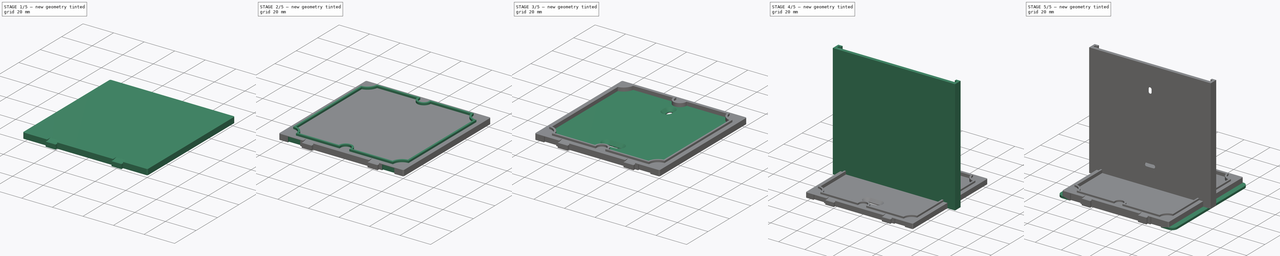
[diagram: build sequence overview — one tinted view per stage of 5, left to right]
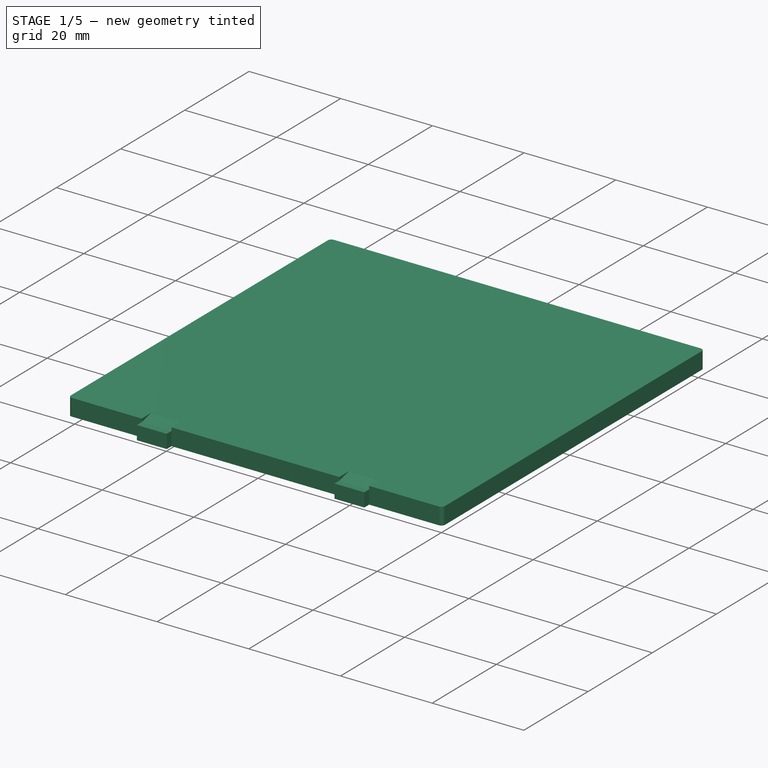
[diagram: stage 1 of 5 — iso view after this stage's code; geometry added in this stage tinted green]
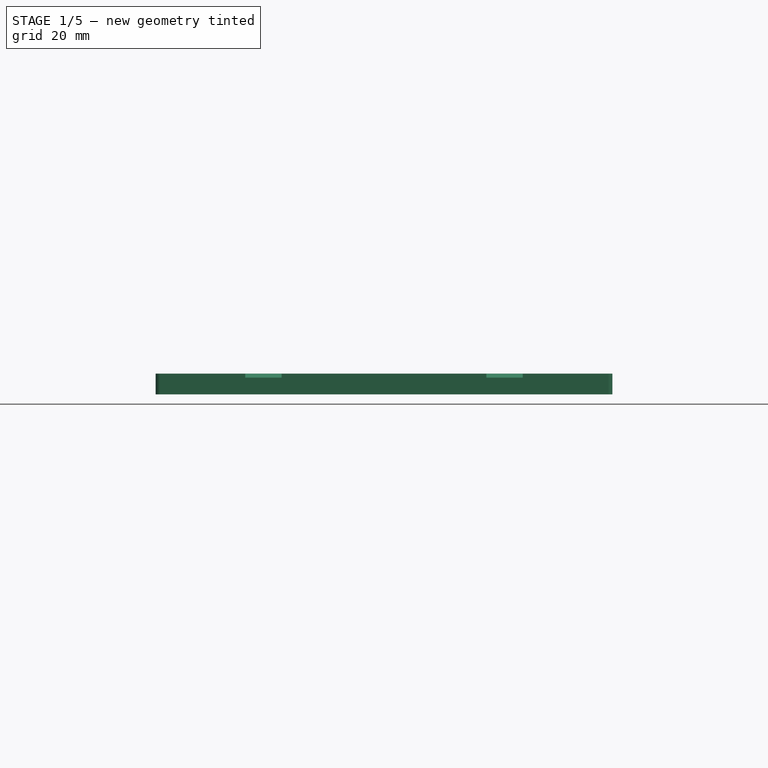
[diagram: stage 1 of 5 — front view after this stage's code; geometry added in this stage tinted green]
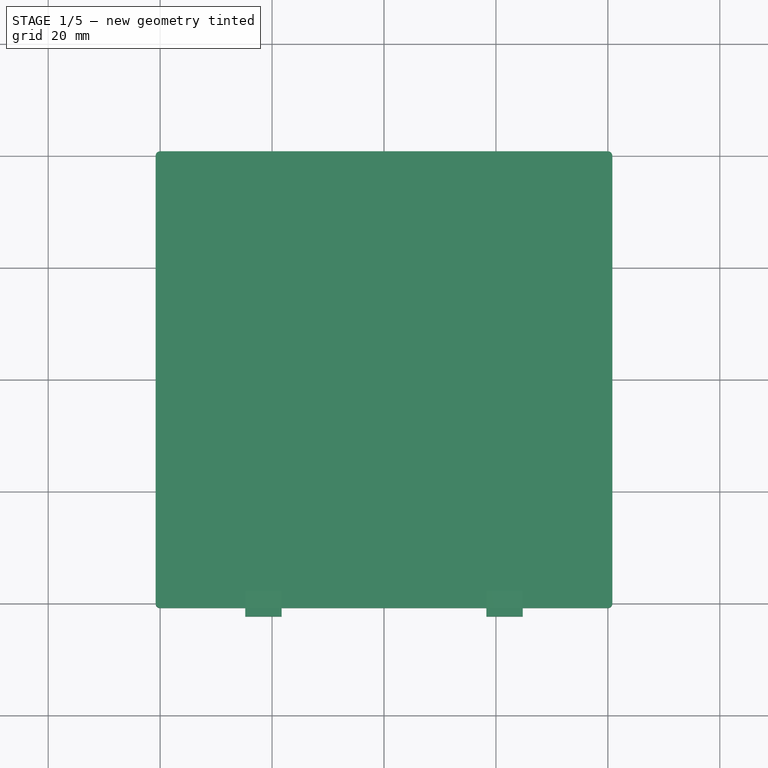
[diagram: stage 1 of 5 — top view after this stage's code; geometry added in this stage tinted green]
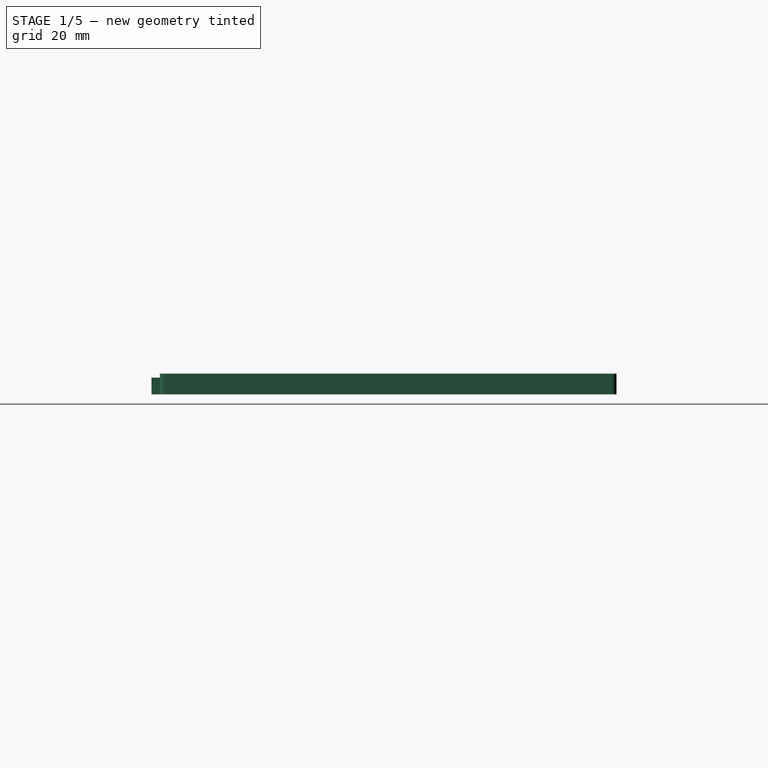
[diagram: stage 1 of 5 — right view after this stage's code; geometry added in this stage tinted green]
FCSTD DOCUMENT  (FreeCAD 1.0R39319 (Git))
Label: ZigbeeWallSwitchBack
License: All rights reserved
LicenseURL: https://en.wikipedia.org/wiki/All_rights_reserved
objects: Sketcher::SketchObject×11, PartDesign::Pad×5, PartDesign::Pocket×5, PartDesign::Chamfer×4, PartDesign::Body×4, PartDesign::Fillet×2, PartDesign::FeatureBase×2, PartDesign::ShapeBinder×2, PartDesign::Plane×1
note: 81 computed .brp shape members not serialized (recipe doc carries the construction recipe); baked Part::Feature solids carry a one-line shape summary decoded from their .brp

FEATURE [Sketcher::SketchObject] Sketch  label="Template"
  ArcFitTolerance = 1e-06
  AttachmentSupport = -> [XY_Plane]
  FullyConstrained = true
  MakeInternals = false
  MapMode = 5
  sketch-geometry (86):
    g0: LineSegment StartX=-40.8 StartY=40.8 StartZ=0 EndX=-40.8 EndY=-40.8 EndZ=0
    g1: LineSegment StartX=40.8 StartY=-40.8 StartZ=0 EndX=40.8 EndY=40.8 EndZ=0
    g2: GeomPoint X=0 Y=0 Z=0
    g3: ArcOfCircle CenterX=-37.75 CenterY=37.75 CenterZ=0 NormalX=0 NormalY=0 NormalZ=1 AngleXU=0 Radius=6 StartAngle=4.71239 EndAngle=6.28319
    g4: ArcOfCircle CenterX=37.75 CenterY=37.75 CenterZ=0 NormalX=0 NormalY=0 NormalZ=1 AngleXU=0 Radius=6 StartAngle=3.14159 EndAngle=4.71239
    g5: ArcOfCircle CenterX=37.75 CenterY=-37.75 CenterZ=0 NormalX=0 NormalY=0 NormalZ=1 AngleXU=0 Radius=6 StartAngle=1.5708 EndAngle=3.14159
    g6: ArcOfCircle CenterX=-37.75 CenterY=-37.75 CenterZ=0 NormalX=0 NormalY=0 NormalZ=1 AngleXU=0 Radius=6 StartAngle=0 EndAngle=1.5708
    g7: ArcOfCircle CenterX=-37.75 CenterY=37.75 CenterZ=0 NormalX=0 NormalY=0 NormalZ=1 AngleXU=0 Radius=7.2 StartAngle=4.87984 EndAngle=6.11574
    g8: ArcOfCircle CenterX=37.75 CenterY=37.75 CenterZ=0 NormalX=0 NormalY=0 NormalZ=1 AngleXU=0 Radius=7.2 StartAngle=3.30904 EndAngle=4.54494
    g9: ArcOfCircle CenterX=-37.75 CenterY=-37.75 CenterZ=0 NormalX=0 NormalY=0 NormalZ=1 AngleXU=0 Radius=7.2 StartAngle=0.167448 EndAngle=1.40335
    g10: ArcOfCircle CenterX=-6e-16 CenterY=36.55 CenterZ=0 NormalX=0 NormalY=0 NormalZ=1 AngleXU=0 Radius=3.2 StartAngle=3.14159 EndAngle=6.28319
    g11: LineSegment StartX=-3.2 StartY=37.75 StartZ=0 EndX=-31.75 EndY=37.75 EndZ=0
    g12: LineSegment StartX=31.75 StartY=37.75 StartZ=0 EndX=3.2 EndY=37.75 EndZ=0
    g13: LineSegment [constr] StartX=3.2 StartY=37.75 StartZ=0 EndX=-3.2 EndY=37.75 EndZ=0
    g14: LineSegment StartX=37.75 StartY=-31.75 StartZ=0 EndX=37.75 EndY=31.75 EndZ=0
    g15: LineSegment StartX=3.2 StartY=-37.75 StartZ=0 EndX=31.75 EndY=-37.75 EndZ=0
    g16: LineSegment StartX=-31.75 StartY=-37.75 StartZ=0 EndX=-3.2 EndY=-37.75 EndZ=0
    g17: LineSegment [constr] StartX=-3.2 StartY=-37.75 StartZ=0 EndX=3.2 EndY=-37.75 EndZ=0
    g18: LineSegment StartX=-37.75 StartY=31.75 StartZ=0 EndX=-37.75 EndY=-31.75 EndZ=0
    g19: LineSegment [constr] StartX=-37.75 StartY=-31.75 StartZ=0 EndX=-37.75 EndY=-37.75 EndZ=0
    g20: LineSegment [constr] StartX=-37.75 StartY=-37.75 StartZ=0 EndX=-31.75 EndY=-37.75 EndZ=0
    g21: LineSegment [constr] StartX=37.75 StartY=-37.75 StartZ=0 EndX=31.75 EndY=-37.75 EndZ=0
    g22: LineSegment [constr] StartX=37.75 StartY=-37.75 StartZ=0 EndX=37.75 EndY=-31.75 EndZ=0
    g23: LineSegment [constr] StartX=-37.75 StartY=37.75 StartZ=0 EndX=-37.75 EndY=31.75 EndZ=0
    g24: LineSegment [constr] StartX=-37.75 StartY=37.75 StartZ=0 EndX=-31.75 EndY=37.75 EndZ=0
    g25: LineSegment [constr] StartX=37.75 StartY=37.75 StartZ=0 EndX=31.75 EndY=37.75 EndZ=0
    g26: LineSegment [constr] StartX=37.75 StartY=37.75 StartZ=0 EndX=37.75 EndY=31.75 EndZ=0
    g27: LineSegment StartX=-3.2 StartY=36.55 StartZ=0 EndX=-3.2 EndY=37.75 EndZ=0
    g28: LineSegment StartX=3.2 StartY=36.55 StartZ=0 EndX=3.2 EndY=37.75 EndZ=0
    g29: LineSegment [constr] StartX=-33.5074 StartY=33.5074 StartZ=0 EndX=-32.6588 EndY=32.6588 EndZ=0
    g30: LineSegment [constr] StartX=-30.6507 StartY=36.55 StartZ=0 EndX=-30.6507 EndY=37.75 EndZ=0
    g31: LineSegment [constr] StartX=-36.55 StartY=30.6507 StartZ=0 EndX=-37.75 EndY=30.6507 EndZ=0
    g32: ArcOfCircle CenterX=-6e-16 CenterY=36.55 CenterZ=0 NormalX=0 NormalY=0 NormalZ=1 AngleXU=0 Radius=4.4 StartAngle=3.14159 EndAngle=6.28319
    g33: LineSegment StartX=-30.6507 StartY=36.55 StartZ=0 EndX=-4.4 EndY=36.55 EndZ=0
    g34: LineSegment StartX=4.4 StartY=36.55 StartZ=0 EndX=30.6507 EndY=36.55 EndZ=0
    g35: LineSegment [constr] StartX=30.6507 StartY=36.55 StartZ=0 EndX=30.6507 EndY=37.75 EndZ=0
    g36: LineSegment [constr] StartX=36.55 StartY=30.6507 StartZ=0 EndX=37.75 EndY=30.6507 EndZ=0
    g37: ArcOfCircle CenterX=37.75 CenterY=-37.75 CenterZ=0 NormalX=0 NormalY=0 NormalZ=1 AngleXU=0 Radius=7.2 StartAngle=1.73824 EndAngle=2.97414
    g38: LineSegment StartX=-36.55 StartY=30.6507 StartZ=0 EndX=-36.55 EndY=-30.6507 EndZ=0
    g39: LineSegment [constr] StartX=-4.4 StartY=36.55 StartZ=0 EndX=-3.2 EndY=36.55 EndZ=0
    g40: LineSegment StartX=36.55 StartY=30.6507 StartZ=0 EndX=36.55 EndY=-30.6507 EndZ=0
    g41: ArcOfCircle CenterX=1e-15 CenterY=-36.55 CenterZ=0 NormalX=0 NormalY=0 NormalZ=1 AngleXU=0 Radius=3.2 StartAngle=3.2e-15 EndAngle=3.14159
    g42: LineSegment [constr] StartX=3.2 StartY=-36.55 StartZ=0 EndX=4.4 EndY=-36.55 EndZ=0
    g43: LineSegment [constr] StartX=-3.2 StartY=-36.55 StartZ=0 EndX=-4.4 EndY=-36.55 EndZ=0
    g44: LineSegment StartX=4.4 StartY=-36.55 StartZ=0 EndX=30.6507 EndY=-36.55 EndZ=0
    g45: LineSegment StartX=-4.4 StartY=-36.55 StartZ=0 EndX=-30.6507 EndY=-36.55 EndZ=0
    g46: ArcOfCircle CenterX=1e-15 CenterY=-36.55 CenterZ=0 NormalX=0 NormalY=0 NormalZ=1 AngleXU=0 Radius=4.4 StartAngle=9e-16 EndAngle=3.14159
    g47: LineSegment StartX=-34.8 StartY=40.8 StartZ=0 EndX=-34.8 EndY=39.8 EndZ=0
    g48: LineSegment StartX=-34.8 StartY=39.8 StartZ=0 EndX=-26.8 EndY=39.8 EndZ=0
    g49: LineSegment StartX=-26.8 StartY=39.8 StartZ=0 EndX=-26.8 EndY=40.8 EndZ=0
    g50: LineSegment StartX=-34.8 StartY=40.8 StartZ=0 EndX=-40.8 EndY=40.8 EndZ=0
    g51: LineSegment StartX=-26.8 StartY=40.8 StartZ=0 EndX=-34.8 EndY=40.8 EndZ=0
    g52: LineSegment StartX=40.8 StartY=40.8 StartZ=0 EndX=34.8 EndY=40.8 EndZ=0
    g53: LineSegment StartX=34.8 StartY=40.8 StartZ=0 EndX=26.8 EndY=40.8 EndZ=0
    g54: LineSegment StartX=26.8 StartY=40.8 StartZ=0 EndX=-26.8 EndY=40.8 EndZ=0
    g55: LineSegment StartX=26.8 StartY=40.8 StartZ=0 EndX=26.8 EndY=39.8 EndZ=0
    g56: LineSegment StartX=26.8 StartY=39.8 StartZ=0 EndX=34.8 EndY=39.8 EndZ=0
    g57: LineSegment StartX=34.8 StartY=39.8 StartZ=0 EndX=34.8 EndY=40.8 EndZ=0
    g58: LineSegment [constr] StartX=3.2 StartY=37.75 StartZ=0 EndX=3.2 EndY=40.8 EndZ=0
    g59: LineSegment [constr] StartX=37.75 StartY=30.6507 StartZ=0 EndX=40.8 EndY=30.6507 EndZ=0
    g60: LineSegment StartX=-40.8 StartY=-40.8 StartZ=0 EndX=-34.8 EndY=-40.8 EndZ=0
    g61: LineSegment StartX=-34.8 StartY=-40.8 StartZ=0 EndX=-26.8 EndY=-40.8 EndZ=0
    g62: LineSegment StartX=26.8 StartY=-40.8 StartZ=0 EndX=34.8 EndY=-40.8 EndZ=0
    g63: LineSegment StartX=34.8 StartY=-40.8 StartZ=0 EndX=40.8 EndY=-40.8 EndZ=0
    g64: LineSegment StartX=-34.8 StartY=-40.8 StartZ=0 EndX=-34.8 EndY=-39.8 EndZ=0
    g65: LineSegment StartX=-34.8 StartY=-39.8 StartZ=0 EndX=-26.8 EndY=-39.8 EndZ=0
    g66: LineSegment StartX=-26.8 StartY=-39.8 StartZ=0 EndX=-26.8 EndY=-40.8 EndZ=0
    g67: LineSegment StartX=26.8 StartY=-40.8 StartZ=0 EndX=26.8 EndY=-39.8 EndZ=0
    g68: LineSegment StartX=26.8 StartY=-39.8 StartZ=0 EndX=34.8 EndY=-39.8 EndZ=0
    g69: LineSegment StartX=34.8 StartY=-39.8 StartZ=0 EndX=34.8 EndY=-40.8 EndZ=0
    g70: LineSegment StartX=-26.8 StartY=-40.8 StartZ=0 EndX=-24.8 EndY=-40.8 EndZ=0
    g71: LineSegment StartX=-24.8 StartY=-40.8 StartZ=0 EndX=-18.3 EndY=-40.8 EndZ=0
    g72: LineSegment StartX=-18.3 StartY=-40.8 StartZ=0 EndX=18.3 EndY=-40.8 EndZ=0
    g73: LineSegment StartX=18.3 StartY=-40.8 StartZ=0 EndX=24.8 EndY=-40.8 EndZ=0
    g74: LineSegment StartX=24.8 StartY=-40.8 StartZ=0 EndX=26.8 EndY=-40.8 EndZ=0
    g75: LineSegment StartX=-24.8 StartY=-40.8 StartZ=0 EndX=-24.8 EndY=-42.3 EndZ=0
    g76: LineSegment StartX=-24.8 StartY=-42.3 StartZ=0 EndX=-18.3 EndY=-42.3 EndZ=0
    g77: LineSegment StartX=-18.3 StartY=-42.3 StartZ=0 EndX=-18.3 EndY=-40.8 EndZ=0
    g78: LineSegment StartX=18.3 StartY=-40.8 StartZ=0 EndX=18.3 EndY=-42.3 EndZ=0
    g79: LineSegment StartX=18.3 StartY=-42.3 StartZ=0 EndX=24.8 EndY=-42.3 EndZ=0
    g80: LineSegment StartX=24.8 StartY=-42.3 StartZ=0 EndX=24.8 EndY=-40.8 EndZ=0
    g81: LineSegment StartX=-40.8 StartY=-9.1e-15 StartZ=0 EndX=40.8 EndY=-1.8e-15 EndZ=0
    g82: LineSegment StartX=-3.2 StartY=-37.75 StartZ=0 EndX=-3.2 EndY=-36.55 EndZ=0
    g83: LineSegment StartX=3.2 StartY=-37.75 StartZ=0 EndX=3.2 EndY=-36.55 EndZ=0
    g84: LineSegment [constr] StartX=-30.6507 StartY=-36.55 StartZ=0 EndX=-30.6507 EndY=-37.75 EndZ=0
    g85: LineSegment StartX=0 StartY=40.8 StartZ=0 EndX=0 EndY=-40.8 EndZ=0
  constraints (240):
    c: Coincident(g0,g60)
    c: Coincident(g63,g1)
    c: Coincident(g1,g52)
    c: Coincident(g50,g0)
    c: Vertical(g0)
    c: Vertical(g1)
    c: DistanceX(g50,g52) = 81.6
    c: Symmetric(g0,g1,g2)
    c: DistanceX(g3,g4) = 75.5
    c: Equal(g3,g4)
    c: Equal(g4,g5)
    c: Equal(g5,g6)
    c: Radius(g3) = 6
    c: Coincident(g11,g3)
    c: Coincident(g18,g3)
    c: Coincident(g12,g4)
    c: Coincident(g14,g4)
    c: Coincident(g15,g5)
    c: Coincident(g16,g6)
    c: Symmetric(g6,g4,g2)
    c: Coincident(g7,g3)
    c: Coincident(g8,g4)
    c: Coincident(g9,g6)
    c: Equal(g7,g8)
    c: Radius(g7) = 7.2
    c: Coincident(g13,g11)
    c: Horizontal(g11)
    c: Coincident(g12,g13)
    c: Horizontal(g12)
    c: Horizontal(g13)
    c: Vertical(g14)
    c: Coincident(g17,g15)
    c: Horizontal(g15)
    c: Coincident(g16,g17)
    c: Horizontal(g16)
    c: Horizontal(g17)
    c: Vertical(g18)
    c: Coincident(g19,g6)
    c: Coincident(g19,g6)
    c: Vertical(g19)
    c: Coincident(g20,g6)
    c: Coincident(g20,g6)
    c: Horizontal(g20)
    c: Coincident(g21,g5)
    c: Coincident(g21,g5)
    c: Horizontal(g21)
    c: Coincident(g22,g5)
    c: Coincident(g22,g5)
    c: Vertical(g22)
    c: Coincident(g23,g3)
    c: Coincident(g23,g3)
    c: Vertical(g23)
    c: Coincident(g24,g3)
    c: Coincident(g24,g3)
    c: Horizontal(g24)
    c: Coincident(g25,g4)
    c: Coincident(g25,g4)
    c: Horizontal(g25)
    c: Coincident(g26,g4)
    c: Coincident(g26,g4)
    c: Vertical(g26)
    c: Coincident(g27,g10)
    c: Coincident(g27,g11)
    c: Vertical(g27)
    c: Coincident(g28,g10)
    c: Coincident(g28,g12)
    c: Vertical(g28)
    c: PointOnObject(g29,g3)
    c: PointOnObject(g29,g7)
    c: PointOnObject(g2,g29)
    c: Coincident(g30,g7)
    c: PointOnObject(g30,g11)
    c: Vertical(g30)
    c: Coincident(g31,g7)
    c: PointOnObject(g31,g18)
    c: Horizontal(g31)
    c: Equal(g29,g31)
    c: Equal(g31,g30)
    c: Equal(g30,g27)
    c: Coincident(g32,g10)
    c: Coincident(g33,g7)
    c: Coincident(g33,g32)
    c: Equal(g11,g12)
    c: Coincident(g34,g32)
    c: Coincident(g34,g8)
    c: Horizontal(g34)
    c: PointOnObject(g3,g29)
    c: Equal(g27,g28)
    c: Horizontal(g33)
    c: PointOnObject(g10,g33)
    c: PointOnObject(g32,g33)
    c: PointOnObject(g35,g12)
    c: Vertical(g35)
    c: Coincident(g36,g8)
    c: PointOnObject(g36,g14)
    c: Horizontal(g36)
    c: Equal(g35,g36)
    c: Coincident(g37,g5)
    c: Equal(g8,g37)
    c: Equal(g37,g9)
    c: Coincident(g38,g7)
    c: Vertical(g38)
    c: Coincident(g39,g32)
    c: Coincident(g39,g10)
    c: Equal(g30,g39)
    c: Equal(g15,g16)
    c: Coincident(g40,g8)
    c: Coincident(g42,g41)
    c: Horizontal(g42)
    c: Coincident(g43,g41)
    c: Horizontal(g43)
    c: Coincident(g44,g42)
    c: Coincident(g44,g37)
    c: Horizontal(g44)
    c: Coincident(g45,g43)
    c: Coincident(g45,g9)
    c: Horizontal(g45)
    c: Coincident(g46,g43)
    c: Coincident(g46,g41)
    c: Coincident(g46,g42)
    c: Coincident(g35,g8)
    c: Radius(g10) = 3.2
    c: Equal(g10,g41)
    c: Vertical(g40)
    c: Vertical(g47)
    c: Coincident(g47,g48)
    c: Horizontal(g48)
    c: Coincident(g48,g49)
    c: Vertical(g49)
    c: DistanceX(g47,g49) = 8
    c: DistanceX(g0,g47) = 6
    c: DistanceY(g47,g47) = 1
    c: Coincident(g51,g50)
    c: Horizontal(g50)
    c: Coincident(g54,g51)
    c: Horizontal(g51)
    c: Coincident(g52,g53)
    c: Horizontal(g52)
    c: PointOnObject(g47,g52)
    c: Coincident(g53,g54)
    c: Horizontal(g53)
    c: Coincident(g53,g55)
    c: Vertical(g55)
    c: Coincident(g55,g56)
    c: Horizontal(g56)
    c: Coincident(g56,g57)
    c: Coincident(g57,g52)
    c: Vertical(g57)
    c: Equal(g50,g52)
    c: Equal(g53,g51)
    c: Coincident(g50,g47)
    c: Coincident(g51,g49)
    c: Equal(g55,g49)
    c: Coincident(g58,g12)
    c: PointOnObject(g58,g54)
    c: Vertical(g58)
    c: Coincident(g59,g36)
    c: PointOnObject(g59,g1)
    c: Horizontal(g59)
    c: Equal(g58,g59)
    c: Coincident(g60,g61)
    c: Horizontal(g60)
    c: Coincident(g61,g70)
    c: Horizontal(g61)
    c: Coincident(g74,g62)
    c: Coincident(g62,g63)
    c: Horizontal(g62)
    c: Horizontal(g63)
    c: Equal(g60,g63)
    c: Equal(g61,g62)
    c: Equal(g60,g50)
    c: Equal(g51,g61)
    c: Coincident(g60,g64)
    c: Vertical(g64)
    c: Coincident(g64,g65)
    c: Horizontal(g65)
    c: Coincident(g65,g66)
    c: Coincident(g66,g61)
    c: Vertical(g66)
    c: Coincident(g74,g67)
    c: Vertical(g67)
    c: Coincident(g67,g68)
    c: Horizontal(g68)
    c: Coincident(g68,g69)
    c: Coincident(g69,g62)
    c: Vertical(g69)
    c: Equal(g66,g67)
    c: Equal(g64,g47)
    c: Coincident(g70,g71)
    c: Horizontal(g70)
    c: Coincident(g71,g72)
    c: Horizontal(g71)
    c: Coincident(g72,g73)
    c: Horizontal(g72)
    c: Coincident(g73,g74)
    c: Horizontal(g73)
    c: Horizontal(g74)
    c: Coincident(g70,g75)
    c: Vertical(g75)
    c: Coincident(g75,g76)
    c: Horizontal(g76)
    c: Coincident(g76,g77)
    c: Coincident(g77,g71)
    c: Vertical(g77)
    c: Coincident(g72,g78)
    c: Vertical(g78)
    c: Coincident(g78,g79)
    c: Horizontal(g79)
    c: Coincident(g79,g80)
    c: Coincident(g80,g73)
    c: Vertical(g80)
    c: Equal(g79,g76)
    c: DistanceX(g76,g76) = 6.5
    c: Equal(g70,g74)
    c: Equal(g78,g77)
    c: DistanceX(g0,g75) = 16
    c: DistanceY(g75,g0) = 1.5
    c: Symmetric(g0,g0,g81)
    c: Symmetric(g1,g1,g81)
    c: Equal(g81,g0)
    c: Coincident(g2,g-1)  '__ANCHOR__'
    c: Coincident(g18,g6)
    c: Coincident(g14,g5)
    c: PointOnObject(g41,g43)
    c: PointOnObject(g41,g43)
    c: Coincident(g82,g16)
    c: Coincident(g82,g41)
    c: Vertical(g82)
    c: Coincident(g83,g15)
    c: Coincident(g83,g41)
    c: Vertical(g83)
    c: Equal(g46,g32)
    c: Coincident(g38,g9)
    c: Coincident(g40,g37)
    c: Coincident(g84,g9)
    c: PointOnObject(g84,g16)
    c: Vertical(g84)
    c: Equal(g31,g84)
    c: Symmetric(g54,g54,g85)
    c: Symmetric(g72,g72,g85)
FEATURE [Sketcher::SketchObject] Sketch001
  ArcFitTolerance = 1e-06
  AttachmentSupport = -> [XY_Plane]
  ExternalGeometry = -> [Sketch]
  FullyConstrained = true
  MakeInternals = false
  MapMode = 5
  sketch-geometry (12):
    g0: LineSegment StartX=-40.8 StartY=40.8 StartZ=0 EndX=40.8 EndY=40.8 EndZ=0
    g1: LineSegment StartX=40.8 StartY=40.8 StartZ=0 EndX=40.8 EndY=-40.8 EndZ=0
    g2: LineSegment StartX=40.8 StartY=-40.8 StartZ=0 EndX=24.8 EndY=-40.8 EndZ=0
    g3: LineSegment StartX=24.8 StartY=-40.8 StartZ=0 EndX=24.8 EndY=-42.3 EndZ=0
    g4: LineSegment StartX=24.8 StartY=-42.3 StartZ=0 EndX=18.3 EndY=-42.3 EndZ=0
    g5: LineSegment StartX=18.3 StartY=-42.3 StartZ=0 EndX=18.3 EndY=-40.8 EndZ=0
    g6: LineSegment StartX=18.3 StartY=-40.8 StartZ=0 EndX=-18.3 EndY=-40.8 EndZ=0
    g7: LineSegment StartX=-18.3 StartY=-40.8 StartZ=0 EndX=-18.3 EndY=-42.3 EndZ=0
    g8: LineSegment StartX=-18.3 StartY=-42.3 StartZ=0 EndX=-24.8 EndY=-42.3 EndZ=0
    g9: LineSegment StartX=-24.8 StartY=-42.3 StartZ=0 EndX=-24.8 EndY=-40.8 EndZ=0
    g10: LineSegment StartX=-24.8 StartY=-40.8 StartZ=0 EndX=-40.8 EndY=-40.8 EndZ=0
    g11: LineSegment StartX=-40.8 StartY=-40.8 StartZ=0 EndX=-40.8 EndY=40.8 EndZ=0
  constraints (24):
    c: Coincident(g-3,g0)
    c: Coincident(g0,g-4)
    c: Coincident(g0,g1)
    c: Coincident(g1,g-4)
    c: Coincident(g1,g2)
    c: Coincident(g2,g-8)
    c: Coincident(g2,g3)
    c: Coincident(g3,g-8)
    c: Coincident(g3,g4)
    c: Coincident(g4,g-7)
    c: Coincident(g4,g5)
    c: Coincident(g5,g-7)
    c: Coincident(g5,g6)
    c: Coincident(g6,g-6)
    c: Coincident(g6,g7)
    c: Coincident(g7,g-6)
    c: Coincident(g7,g8)
    c: Coincident(g8,g-5)
    c: Coincident(g8,g9)
    c: Coincident(g9,g-5)
    c: Coincident(g9,g10)
    c: Coincident(g10,g-3)
    c: Coincident(g10,g11)
    c: Coincident(g11,g0)
FEATURE [PartDesign::Pad] Pad
  Direction = (0,0,1)
  Length = 3.7
  Length2 = 10
  Profile = -> Sketch001
  ReferenceAxis = -> Sketch001 [N_Axis]
  Refine = true
  Suppressed = false
  Type = 0
FEATURE [Sketcher::SketchObject] Sketch002
  ArcFitTolerance = 1e-06
  AttachmentOffset = pos=(0,0,3.7) rot=(0,0,1;0rad)
  AttachmentSupport = -> [XY_Plane]
  ExternalGeometry = -> [Sketch]
  FullyConstrained = true
  MakeInternals = false
  MapMode = 5
  Placement = pos=(0,0,3.7) rot=(0,0,1;0rad)
  expr: .AttachmentOffset.Base.z = Pad.Length
  sketch-geometry (8):
    g0: LineSegment StartX=-24.8 StartY=-42.3 StartZ=0 EndX=-18.3 EndY=-42.3 EndZ=0
    g1: LineSegment StartX=-18.3 StartY=-42.3 StartZ=0 EndX=-18.3 EndY=-37.75 EndZ=0
    g2: LineSegment StartX=-18.3 StartY=-37.75 StartZ=0 EndX=-24.8 EndY=-37.75 EndZ=0
    g3: LineSegment StartX=-24.8 StartY=-37.75 StartZ=0 EndX=-24.8 EndY=-42.3 EndZ=0
    g4: LineSegment StartX=18.3 StartY=-42.3 StartZ=0 EndX=24.8 EndY=-42.3 EndZ=0
    g5: LineSegment StartX=24.8 StartY=-42.3 StartZ=0 EndX=24.8 EndY=-37.75 EndZ=0
    g6: LineSegment StartX=24.8 StartY=-37.75 StartZ=0 EndX=18.3 EndY=-37.75 EndZ=0
    g7: LineSegment StartX=18.3 StartY=-37.75 StartZ=0 EndX=18.3 EndY=-42.3 EndZ=0
  constraints (20):
    c: Coincident(g0,g1)
    c: Coincident(g1,g2)
    c: Coincident(g2,g3)
    c: Coincident(g3,g0)
    c: Horizontal(g2)
    c: Vertical(g1)
    c: Vertical(g3)
    c: Coincident(g0,g-4)
    c: PointOnObject(g1,g-3)
    c: Coincident(g4,g5)
    c: Coincident(g5,g6)
    c: Coincident(g6,g7)
    c: Coincident(g7,g4)
    c: Horizontal(g6)
    c: Vertical(g5)
    c: Vertical(g7)
    c: Coincident(g4,g-5)
    c: PointOnObject(g5,g-6)
    c: Coincident(g4,g-5)
    c: Coincident(g0,g-4)
FEATURE [Sketcher::SketchObject] Sketch003
  ArcFitTolerance = 1e-06
  AttachmentOffset = pos=(0,0,2.9) rot=(0,0,1;0rad)
  AttachmentSupport = -> [XY_Plane]
  ExternalGeometry = -> [Sketch]
  FullyConstrained = true
  MakeInternals = false
  MapMode = 5
  Placement = pos=(0,0,2.9) rot=(0,0,1;0rad)
  expr: .AttachmentOffset.Base.z = <<Pad>>.Length - 0.8 mm
  sketch-geometry (16):
    g0: LineSegment StartX=-34.8 StartY=40.8 StartZ=0 EndX=-34.8 EndY=39.8 EndZ=0
    g1: LineSegment StartX=-34.8 StartY=39.8 StartZ=0 EndX=-26.8 EndY=39.8 EndZ=0
    g2: LineSegment StartX=-26.8 StartY=39.8 StartZ=0 EndX=-26.8 EndY=40.8 EndZ=0
    g3: LineSegment StartX=-26.8 StartY=40.8 StartZ=0 EndX=-34.8 EndY=40.8 EndZ=0
    g4: LineSegment StartX=26.8 StartY=40.8 StartZ=0 EndX=26.8 EndY=39.8 EndZ=0
    g5: LineSegment StartX=26.8 StartY=39.8 StartZ=0 EndX=34.8 EndY=39.8 EndZ=0
    g6: LineSegment StartX=34.8 StartY=39.8 StartZ=0 EndX=34.8 EndY=40.8 EndZ=0
    g7: LineSegment StartX=34.8 StartY=40.8 StartZ=0 EndX=26.8 EndY=40.8 EndZ=0
    g8: LineSegment StartX=26.8 StartY=-39.8 StartZ=0 EndX=26.8 EndY=-40.8 EndZ=0
    g9: LineSegment StartX=26.8 StartY=-40.8 StartZ=0 EndX=34.8 EndY=-40.8 EndZ=0
    g10: LineSegment StartX=34.8 StartY=-40.8 StartZ=0 EndX=34.8 EndY=-39.8 EndZ=0
    g11: LineSegment StartX=34.8 StartY=-39.8 StartZ=0 EndX=26.8 EndY=-39.8 EndZ=0
    g12: LineSegment StartX=-34.8 StartY=-39.8 StartZ=0 EndX=-34.8 EndY=-40.8 EndZ=0
    g13: LineSegment StartX=-34.8 StartY=-40.8 StartZ=0 EndX=-26.8 EndY=-40.8 EndZ=0
    g14: LineSegment StartX=-26.8 StartY=-40.8 StartZ=0 EndX=-26.8 EndY=-39.8 EndZ=0
    g15: LineSegment StartX=-26.8 StartY=-39.8 StartZ=0 EndX=-34.8 EndY=-39.8 EndZ=0
  constraints (32):
    c: Coincident(g0,g1)
    c: Coincident(g1,g2)
    c: Coincident(g2,g3)
    c: Coincident(g3,g0)
    c: Coincident(g0,g-9)
    c: Coincident(g1,g-10)
    c: Coincident(g4,g5)
    c: Coincident(g5,g6)
    c: Coincident(g6,g7)
    c: Coincident(g7,g4)
    c: Coincident(g4,g-8)
    c: Coincident(g5,g-7)
    c: Coincident(g8,g9)
    c: Coincident(g9,g10)
    c: Coincident(g10,g11)
    c: Coincident(g11,g8)
    c: Coincident(g8,g-6)
    c: Coincident(g9,g-5)
    c: Coincident(g12,g13)
    c: Coincident(g13,g14)
    c: Coincident(g14,g15)
    c: Coincident(g15,g12)
    c: Coincident(g12,g-3)
    c: Coincident(g13,g-4)
    c: Coincident(g14,g-3)
    c: Coincident(g12,g-4)
    c: Coincident(g10,g-6)
    c: Coincident(g8,g-5)
    c: Coincident(g4,g-7)
    c: Coincident(g6,g-8)
    c: Coincident(g0,g-10)
    c: Coincident(g2,g-9)
FEATURE [Sketcher::SketchObject] Sketch004
  ArcFitTolerance = 1e-06
  AttachmentOffset = pos=(0,0,3.7) rot=(0,0,1;0rad)
  AttachmentSupport = -> [XY_Plane]
  ExternalGeometry = -> [Sketch]
  FullyConstrained = true
  MakeInternals = false
  MapMode = 5
  Placement = pos=(0,0,3.7) rot=(0,0,1;0rad)
  expr: .AttachmentOffset.Base.z = <<Pad>>.Length
  sketch-geometry (28):
    g0: ArcOfCircle CenterX=-37.75 CenterY=37.75 CenterZ=0 NormalX=0 NormalY=0 NormalZ=1 AngleXU=0 Radius=6 StartAngle=4.71239 EndAngle=6.28319
    g1: ArcOfCircle CenterX=-37.75 CenterY=37.75 CenterZ=0 NormalX=0 NormalY=0 NormalZ=1 AngleXU=0 Radius=7.2 StartAngle=4.87984 EndAngle=6.11574
    g2: ArcOfCircle CenterX=2.5e-15 CenterY=36.55 CenterZ=0 NormalX=0 NormalY=0 NormalZ=1 AngleXU=0 Radius=3.2 StartAngle=3.14159 EndAngle=6.28319
    g3: ArcOfCircle CenterX=-6e-16 CenterY=36.55 CenterZ=0 NormalX=0 NormalY=0 NormalZ=1 AngleXU=0 Radius=4.4 StartAngle=3.14159 EndAngle=6.28319
    g4: ArcOfCircle CenterX=37.75 CenterY=37.75 CenterZ=0 NormalX=0 NormalY=0 NormalZ=1 AngleXU=0 Radius=6 StartAngle=3.14159 EndAngle=4.71239
    g5: ArcOfCircle CenterX=37.75 CenterY=37.75 CenterZ=0 NormalX=0 NormalY=0 NormalZ=1 AngleXU=0 Radius=7.2 StartAngle=3.30904 EndAngle=4.54494
    g6: LineSegment StartX=36.55 StartY=-30.6507 StartZ=0 EndX=36.55 EndY=30.6507 EndZ=0
    g7: LineSegment StartX=30.6507 StartY=36.55 StartZ=0 EndX=4.4 EndY=36.55 EndZ=0
    g8: LineSegment StartX=31.75 StartY=37.75 StartZ=0 EndX=3.2 EndY=37.75 EndZ=0
    g9: LineSegment StartX=3.2 StartY=37.75 StartZ=0 EndX=3.2 EndY=36.55 EndZ=0
    g10: LineSegment StartX=-3.2 StartY=36.55 StartZ=0 EndX=-3.2 EndY=37.75 EndZ=0
    g11: LineSegment StartX=-3.2 StartY=37.75 StartZ=0 EndX=-31.75 EndY=37.75 EndZ=0
    g12: LineSegment StartX=-4.4 StartY=36.55 StartZ=0 EndX=-30.6507 EndY=36.55 EndZ=0
    g13: LineSegment StartX=-36.55 StartY=30.6507 StartZ=0 EndX=-36.55 EndY=-30.6507 EndZ=0
    g14: LineSegment StartX=37.75 StartY=31.75 StartZ=0 EndX=37.75 EndY=-31.75 EndZ=0
    g15: LineSegment StartX=-37.75 StartY=31.75 StartZ=0 EndX=-37.75 EndY=-31.75 EndZ=0
    g16: LineSegment StartX=-31.75 StartY=-37.75 StartZ=0 EndX=-3.2 EndY=-37.75 EndZ=0
    g17: LineSegment StartX=-3.2 StartY=-37.75 StartZ=0 EndX=-3.2 EndY=-36.55 EndZ=0
    g18: LineSegment StartX=-30.6507 StartY=-36.55 StartZ=0 EndX=-4.4 EndY=-36.55 EndZ=0
    g19: LineSegment StartX=3.2 StartY=-37.75 StartZ=0 EndX=31.75 EndY=-37.75 EndZ=0
    g20: LineSegment StartX=4.4 StartY=-36.55 StartZ=0 EndX=30.6507 EndY=-36.55 EndZ=0
    g21: ArcOfCircle CenterX=-37.75 CenterY=-37.75 CenterZ=0 NormalX=0 NormalY=0 NormalZ=1 AngleXU=0 Radius=6 StartAngle=6e-16 EndAngle=1.5708
    g22: ArcOfCircle CenterX=-37.75 CenterY=-37.75 CenterZ=0 NormalX=0 NormalY=0 NormalZ=1 AngleXU=0 Radius=7.2 StartAngle=0.167448 EndAngle=1.40335
    g23: ArcOfCircle CenterX=-1.2e-15 CenterY=-36.55 CenterZ=0 NormalX=0 NormalY=0 NormalZ=1 AngleXU=0 Radius=3.2 StartAngle=5.59516e-06 EndAngle=3.14159
    g24: ArcOfCircle CenterX=-1.3e-15 CenterY=-36.55 CenterZ=0 NormalX=0 NormalY=0 NormalZ=1 AngleXU=0 Radius=4.4 StartAngle=3.85698e-06 EndAngle=3.14159
    g25: LineSegment StartX=3.2 StartY=-36.55 StartZ=0 EndX=3.2 EndY=-37.75 EndZ=0
    g26: ArcOfCircle CenterX=37.75 CenterY=-37.75 CenterZ=0 NormalX=0 NormalY=0 NormalZ=1 AngleXU=0 Radius=6 StartAngle=1.5708 EndAngle=3.14159
    g27: ArcOfCircle CenterX=37.75 CenterY=-37.75 CenterZ=0 NormalX=0 NormalY=0 NormalZ=1 AngleXU=0 Radius=7.2 StartAngle=1.73824 EndAngle=2.97414
  constraints (68):
    c: Coincident(g0,g-4)
    c: Coincident(g1,g-3)
    c: Coincident(g1,g-3)
    c: Coincident(g2,g-10)
    c: Coincident(g2,g-10)
    c: Coincident(g3,g-5)
    c: Coincident(g3,g-5)
    c: Coincident(g4,g-7)
    c: Coincident(g4,g-7)
    c: Coincident(g5,g-6)
    c: Coincident(g5,g-6)
    c: Equal(g-4,g0)
    c: Equal(g-3,g1)
    c: Coincident(g0,g-4)
    c: Equal(g-10,g2)
    c: Equal(g-5,g3)
    c: Equal(g-6,g5)
    c: Equal(g-7,g4)
    c: Coincident(g6,g5)
    c: Coincident(g7,g5)
    c: Coincident(g7,g3)
    c: Coincident(g8,g4)
    c: Coincident(g8,g-9)
    c: Coincident(g9,g8)
    c: Coincident(g9,g2)
    c: Coincident(g10,g2)
    c: Coincident(g10,g-8)
    c: Coincident(g11,g10)
    c: Coincident(g11,g0)
    c: Coincident(g12,g3)
    c: Coincident(g12,g1)
    c: Coincident(g13,g1)
    c: Coincident(g14,g4)
    c: Coincident(g15,g0)
    c: Coincident(g15,g-11)
    c: Coincident(g14,g-16)
    c: Coincident(g16,g-11)
    c: Coincident(g16,g-18)
    c: Coincident(g17,g16)
    c: Coincident(g17,g-18)
    c: Coincident(g18,g-12)
    c: Coincident(g18,g-13)
    c: Coincident(g19,g-17)
    c: Coincident(g19,g-16)
    c: Coincident(g20,g-13)
    c: Coincident(g20,g-15)
    c: Coincident(g21,g15)
    c: Coincident(g21,g16)
    c: Coincident(g22,g18)
    c: Coincident(g23,g17)
    c: Coincident(g23,g-17)
    c: Coincident(g24,g18)
    c: Coincident(g24,g20)
    c: Equal(g-12,g22)
    c: Equal(g-11,g21)
    c: Equal(g-13,g24)
    c: Equal(g-14,g23)
    c: Coincident(g25,g23)
    c: Coincident(g25,g19)
    c: Coincident(g26,g19)
    c: Coincident(g26,g14)
    c: Coincident(g27,g20)
    c: Equal(g-15,g27)
    c: Equal(g-16,g26)
    c: Coincident(g6,g27)
    c: Coincident(g6,g-15)
    c: Coincident(g13,g22)
    c: Coincident(g13,g-12)
FEATURE [Sketcher::SketchObject] Sketch005
  ArcFitTolerance = 1e-06
  AttachmentOffset = pos=(0,0,3.7) rot=(0,0,1;0rad)
  AttachmentSupport = -> [XY_Plane]
  ExternalGeometry = -> [Sketch]
  FullyConstrained = true
  MakeInternals = false
  MapMode = 5
  Placement = pos=(0,0,3.7) rot=(0,0,1;0rad)
  expr: .AttachmentOffset.Base.z = <<Pad>>.Length
  sketch-geometry (12):
    g0: ArcOfCircle CenterX=-37.75 CenterY=37.75 CenterZ=0 NormalX=0 NormalY=0 NormalZ=1 AngleXU=0 Radius=7.2 StartAngle=4.87984 EndAngle=6.11574
    g1: ArcOfCircle CenterX=2.6e-15 CenterY=36.55 CenterZ=0 NormalX=0 NormalY=0 NormalZ=1 AngleXU=0 Radius=4.4 StartAngle=3.14159 EndAngle=6.28319
    g2: ArcOfCircle CenterX=37.75 CenterY=37.75 CenterZ=0 NormalX=0 NormalY=0 NormalZ=1 AngleXU=0 Radius=7.2 StartAngle=3.30904 EndAngle=4.54494
    g3: ArcOfCircle CenterX=37.75 CenterY=-37.75 CenterZ=0 NormalX=0 NormalY=0 NormalZ=1 AngleXU=0 Radius=7.2 StartAngle=1.73824 EndAngle=2.97414
    g4: ArcOfCircle CenterX=-2.2e-15 CenterY=-36.55 CenterZ=0 NormalX=0 NormalY=0 NormalZ=1 AngleXU=0 Radius=4.4 StartAngle=6.66976e-06 EndAngle=3.14159
    g5: ArcOfCircle CenterX=-37.75 CenterY=-37.75 CenterZ=0 NormalX=0 NormalY=0 NormalZ=1 AngleXU=0 Radius=7.2 StartAngle=0.167448 EndAngle=1.40335
    g6: LineSegment StartX=-30.6507 StartY=-36.55 StartZ=0 EndX=-4.4 EndY=-36.55 EndZ=0
    g7: LineSegment StartX=4.4 StartY=-36.55 StartZ=0 EndX=30.6507 EndY=-36.55 EndZ=0
    g8: LineSegment StartX=36.55 StartY=-30.6507 StartZ=0 EndX=36.55 EndY=30.6507 EndZ=0
    g9: LineSegment StartX=30.6507 StartY=36.55 StartZ=0 EndX=4.4 EndY=36.55 EndZ=0
    g10: LineSegment StartX=-4.4 StartY=36.55 StartZ=0 EndX=-30.6507 EndY=36.55 EndZ=0
    g11: LineSegment StartX=-36.55 StartY=30.6507 StartZ=0 EndX=-36.55 EndY=-30.6507 EndZ=0
  constraints (30):
    c: Coincident(g0,g-3)
    c: Coincident(g0,g-3)
    c: Coincident(g1,g-4)
    c: Coincident(g1,g-4)
    c: Coincident(g2,g-5)
    c: Coincident(g2,g-5)
    c: Coincident(g3,g-6)
    c: Coincident(g3,g-6)
    c: Coincident(g4,g-7)
    c: Coincident(g4,g-7)
    c: Coincident(g5,g-8)
    c: Coincident(g5,g-8)
    c: Equal(g-3,g0)
    c: Equal(g-4,g1)
    c: Equal(g-5,g2)
    c: Equal(g-6,g3)
    c: Equal(g-7,g4)
    c: Equal(g-8,g5)
    c: Coincident(g6,g5)
    c: Coincident(g6,g4)
    c: Coincident(g7,g4)
    c: Coincident(g7,g3)
    c: Coincident(g8,g2)
    c: Coincident(g9,g2)
    c: Coincident(g9,g1)
    c: Coincident(g10,g1)
    c: Coincident(g10,g0)
    c: Coincident(g11,g0)
    c: Coincident(g3,g8)
    c: Coincident(g5,g11)
FEATURE [PartDesign::Fillet] Fillet
  Base = -> Pad [Edge5,Edge2,Edge1,Edge32]
  BaseFeature = -> Pad
  Radius = 0.8
  Refine = true
  SupportTransform = false
  Suppressed = false
  UseAllEdges = false
FEATURE [PartDesign::Pocket] Pocket
  BaseFeature = -> Fillet
  Direction = (0,0,-1)
  Length = 0.7
  Length2 = 5
  Profile = -> Sketch002
  ReferenceAxis = -> Sketch002 [N_Axis]
  Refine = true
  Suppressed = false
  Type = 0
FEATURE [PartDesign::Chamfer] Chamfer
  Angle = 45
  Base = -> Pocket [Edge67,Edge62]
  BaseFeature = -> Pocket
  ChamferType = 1
  FlipDirection = false
  Refine = true
  Size = 0.69
  Size2 = 3.05
  SupportTransform = false
  Suppressed = false
  UseAllEdges = false
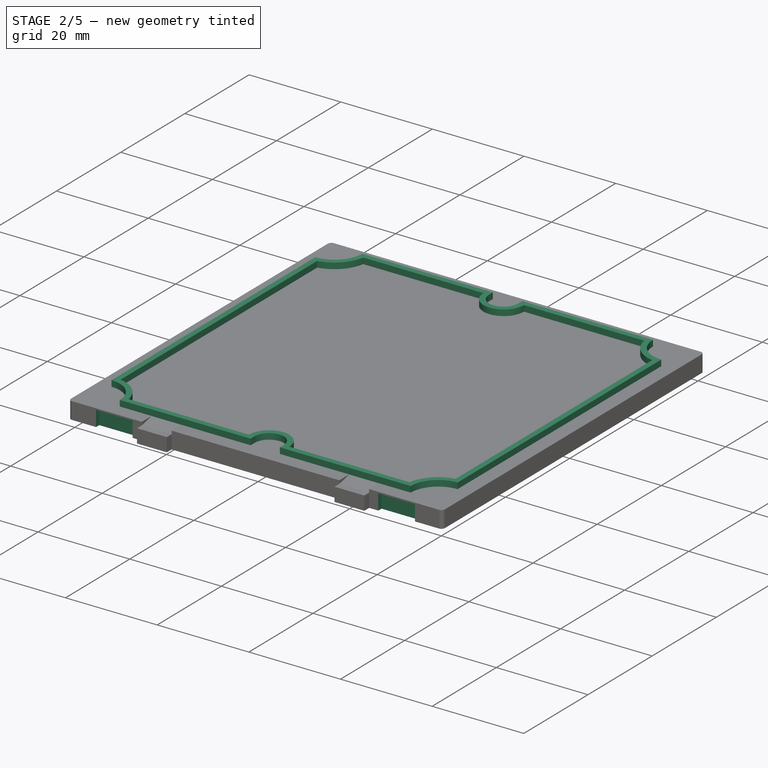
[diagram: stage 2 of 5 — iso view after this stage's code; geometry added in this stage tinted green]
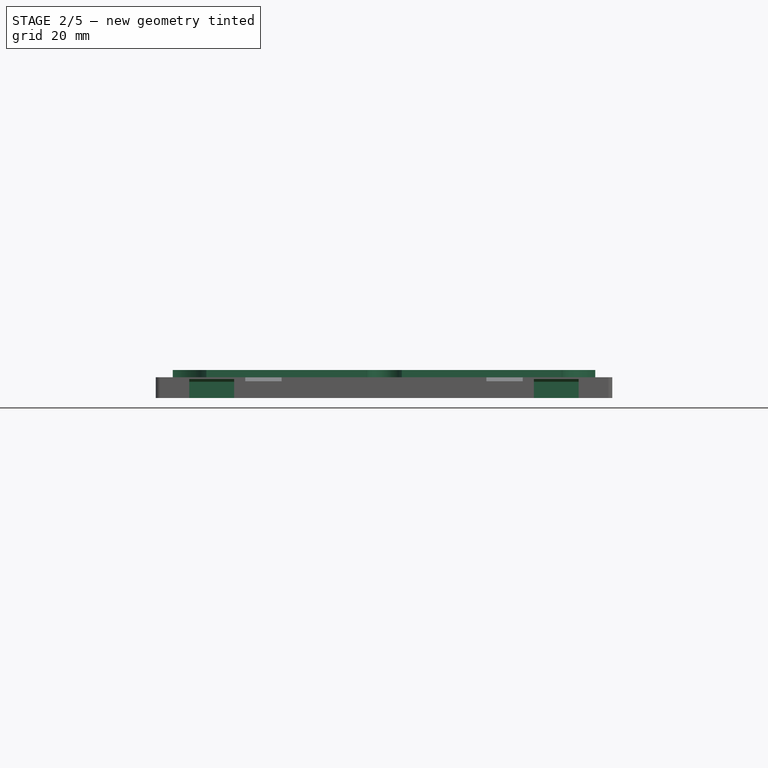
[diagram: stage 2 of 5 — front view after this stage's code; geometry added in this stage tinted green]
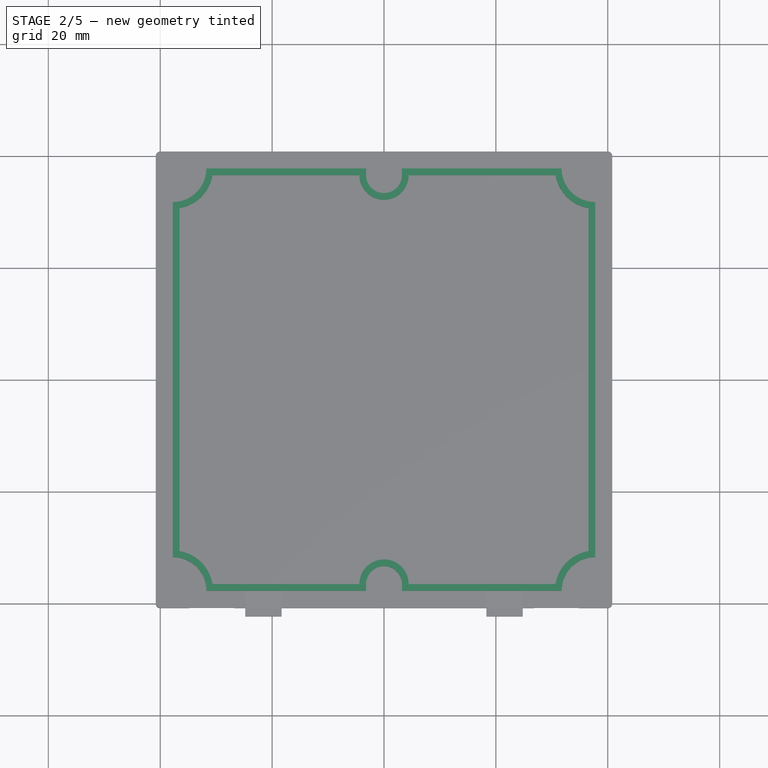
[diagram: stage 2 of 5 — top view after this stage's code; geometry added in this stage tinted green]
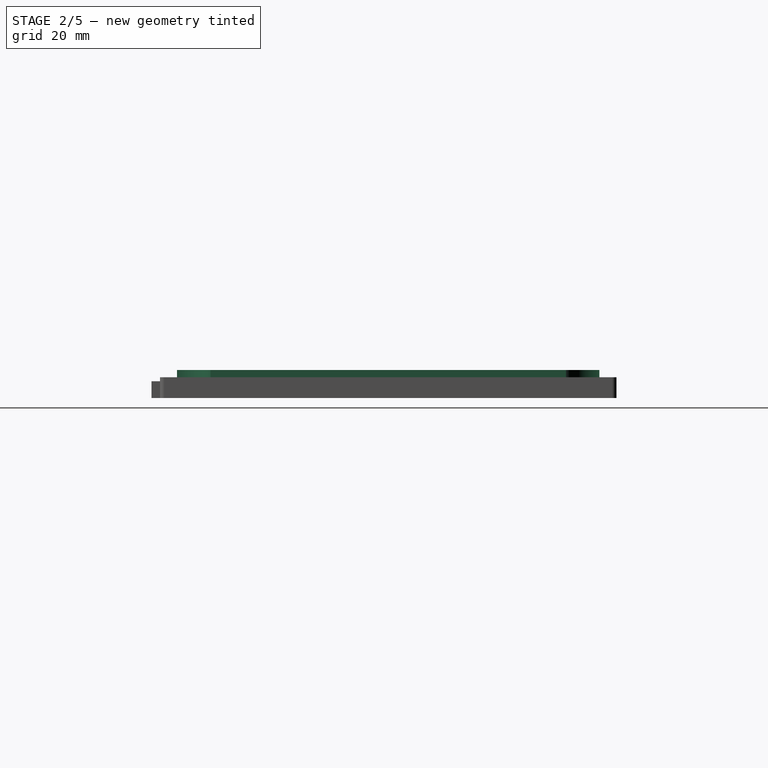
[diagram: stage 2 of 5 — right view after this stage's code; geometry added in this stage tinted green]
FEATURE [PartDesign::Pocket] Pocket001
  BaseFeature = -> Chamfer
  Direction = (0,0,-1)
  Length = 5
  Length2 = 5
  Profile = -> Sketch003
  ReferenceAxis = -> Sketch003 [N_Axis]
  Refine = true
  Suppressed = false
  Type = 1
FEATURE [PartDesign::Chamfer] Chamfer001
  Angle = 45
  Base = -> Pocket001 [Edge26,Edge63,Edge37,Edge41]
  BaseFeature = -> Pocket001
  ChamferType = 1
  FlipDirection = false
  Refine = true
  Size = 0.5
  Size2 = 0.99
  SupportTransform = false
  Suppressed = false
  UseAllEdges = false
FEATURE [PartDesign::Pad] Pad001
  BaseFeature = -> Chamfer001
  Direction = (0,0,1)
  Length = 1.3
  Length2 = 10
  Profile = -> Sketch004
  ReferenceAxis = -> Sketch004 [N_Axis]
  Refine = true
  Suppressed = false
  Type = 0
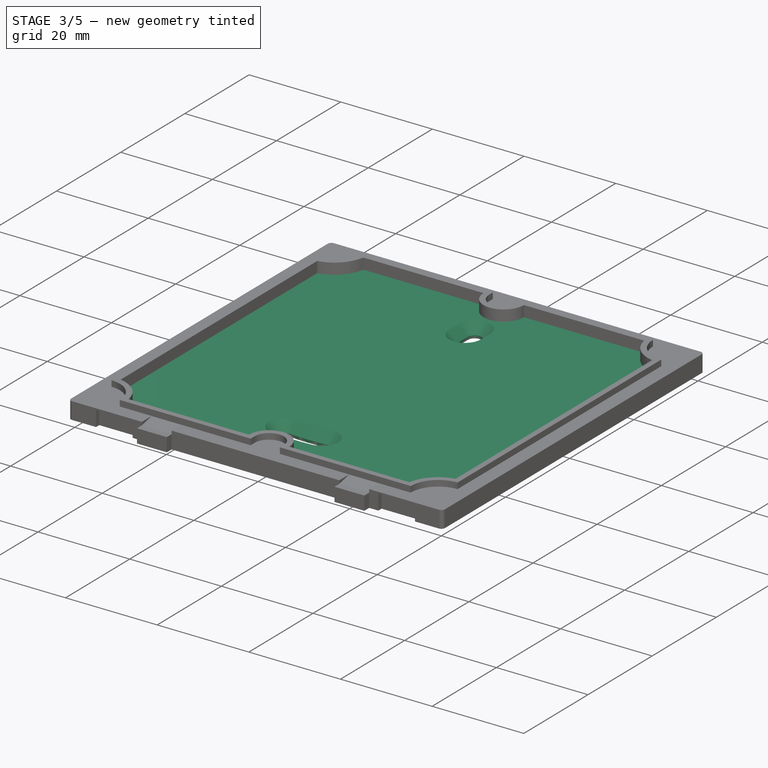
[diagram: stage 3 of 5 — iso view after this stage's code; geometry added in this stage tinted green]
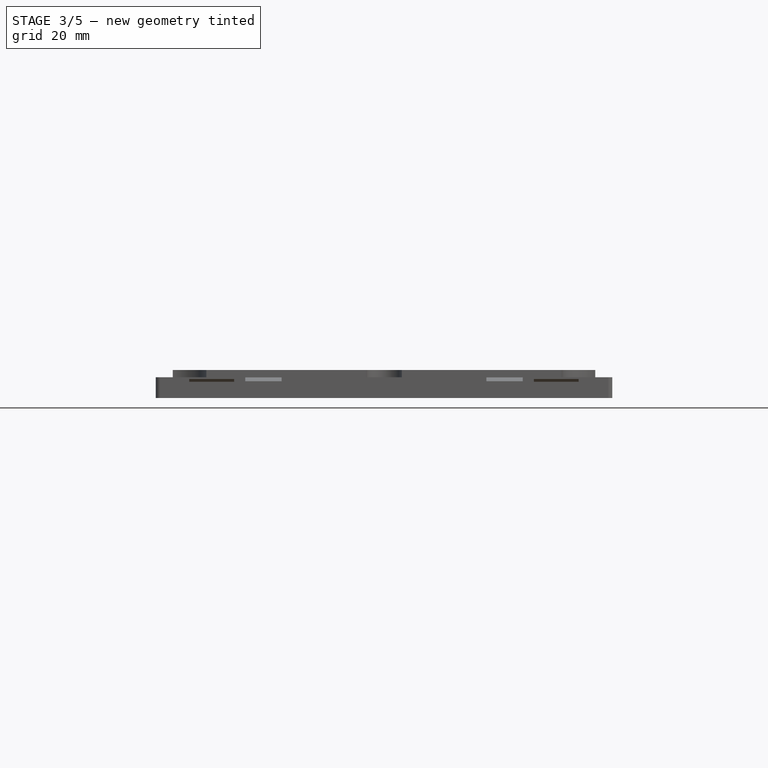
[diagram: stage 3 of 5 — front view after this stage's code; geometry added in this stage tinted green]
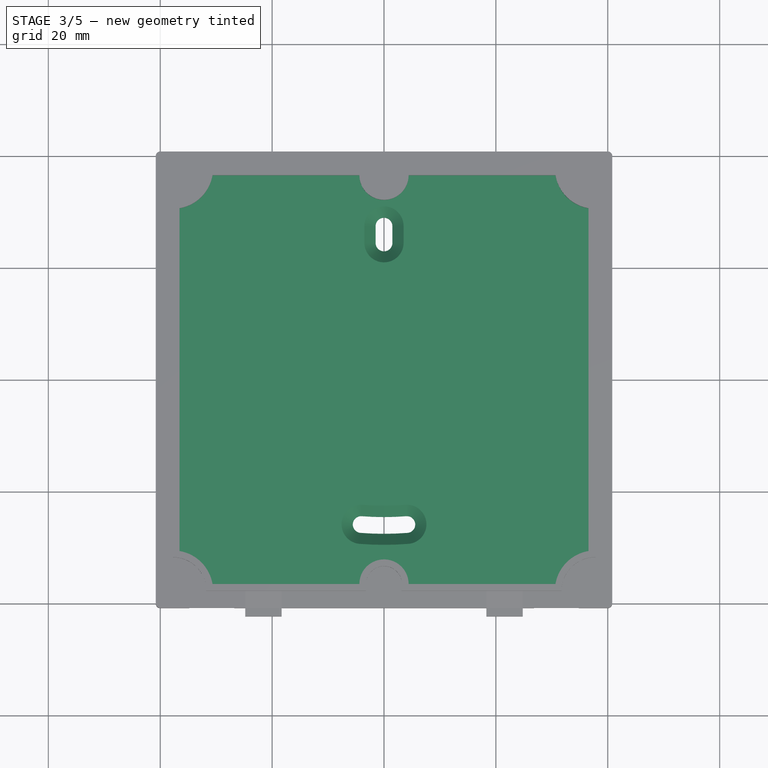
[diagram: stage 3 of 5 — top view after this stage's code; geometry added in this stage tinted green]
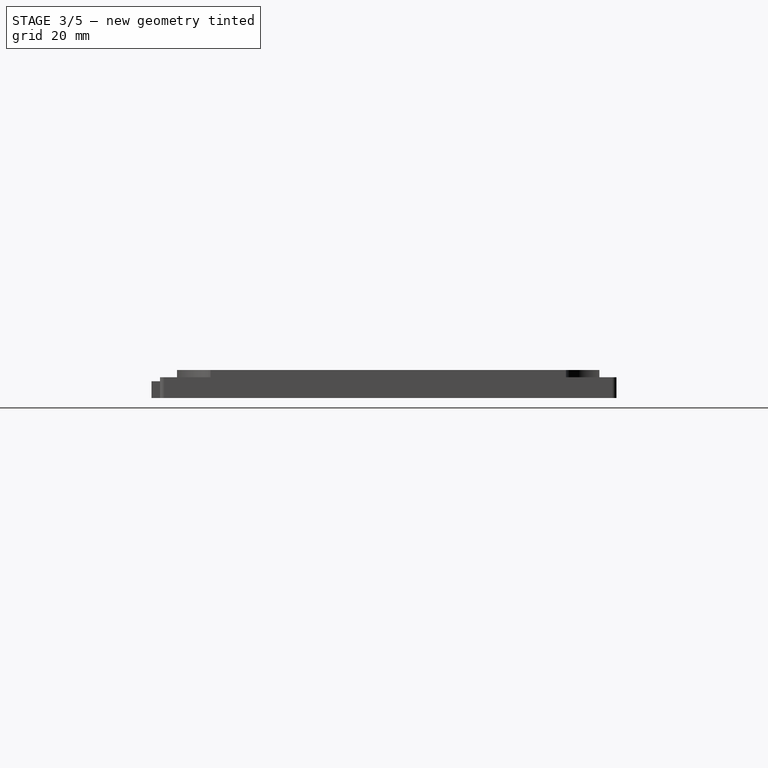
[diagram: stage 3 of 5 — right view after this stage's code; geometry added in this stage tinted green]
FEATURE [PartDesign::Pocket] Pocket002
  BaseFeature = -> Pad001
  Direction = (0,0,-1)
  Length = 1.1
  Length2 = 5
  Profile = -> Sketch005
  ReferenceAxis = -> Sketch005 [N_Axis]
  Refine = true
  Suppressed = false
  Type = 0
FEATURE [PartDesign::Body] Body002  label="Holder"
  AllowCompound = false
  Group = -> [Sketch007,Pad003,Sketch008,Pad004,DatumPlane,Sketch009,Pocket003,Chamfer002]
  Origin = -> Origin002
  Tip = -> Chamfer002
FEATURE [PartDesign::FeatureBase] Clone001
  BaseFeature = -> Body
  Suppressed = false
FEATURE [PartDesign::ShapeBinder] ShapeBinder001
  Support = -> [Sketch]
  TraceSupport = false
FEATURE [Sketcher::SketchObject] Sketch011
  ArcFitTolerance = 1e-06
  AttachmentSupport = -> [XY_Plane003]
  ExternalGeometry = -> [ShapeBinder001]
  FullyConstrained = true
  MakeInternals = false
  MapMode = 5
  sketch-geometry (13):
    g0: ArcOfCircle CenterX=-1.41e-14 CenterY=27.5 CenterZ=0 NormalX=0 NormalY=0 NormalZ=1 AngleXU=0 Radius=1.5 StartAngle=8e-16 EndAngle=3.14159
    g1: ArcOfCircle CenterX=-1.43e-14 CenterY=24.5 CenterZ=0 NormalX=0 NormalY=0 NormalZ=1 AngleXU=0 Radius=1.5 StartAngle=3.14159 EndAngle=6.28319
    g2: LineSegment StartX=1.5 StartY=27.5 StartZ=0 EndX=1.5 EndY=24.5 EndZ=0
    g3: LineSegment StartX=-1.5 StartY=27.5 StartZ=0 EndX=-1.5 EndY=24.5 EndZ=0
    g4: GeomPoint X=-1.42e-14 Y=26 Z=0
    g5: GeomPoint X=-9.5e-15 Y=-26 Z=0
    g6: ArcOfCircle [constr] CenterX=-1.42e-14 CenterY=26 CenterZ=0 NormalX=0 NormalY=0 NormalZ=1 AngleXU=0 Radius=52 StartAngle=4.63385 EndAngle=4.79093
    g7: LineSegment [constr] StartX=-1.42e-14 StartY=26 StartZ=0 EndX=-4.07987 EndY=-25.8397 EndZ=0
    g8: LineSegment [constr] StartX=-1.42e-14 StartY=26 StartZ=0 EndX=4.07987 EndY=-25.8397 EndZ=0
    g9: ArcOfCircle CenterX=-4.07987 CenterY=-25.8397 CenterZ=0 NormalX=0 NormalY=0 NormalZ=1 AngleXU=0 Radius=1.5 StartAngle=1.49226 EndAngle=4.63385
    g10: ArcOfCircle CenterX=4.07987 CenterY=-25.8397 CenterZ=0 NormalX=0 NormalY=0 NormalZ=1 AngleXU=0 Radius=1.5 StartAngle=4.79094 EndAngle=7.93253
    g11: ArcOfCircle CenterX=-1.42e-14 CenterY=26 CenterZ=0 NormalX=0 NormalY=0 NormalZ=1 AngleXU=0 Radius=50.5 StartAngle=4.63385 EndAngle=4.79093
    g12: ArcOfCircle CenterX=-1.42e-14 CenterY=26 CenterZ=0 NormalX=0 NormalY=0 NormalZ=1 AngleXU=0 Radius=53.5 StartAngle=4.63385 EndAngle=4.79093
  constraints (29):
    c: Tangent(g0,g2) = 1.5708
    c: Tangent(g0,g3) = -1.5708
    c: Tangent(g1,g2) = 1.5708
    c: Tangent(g1,g3) = -1.5708
    c: Equal(g0,g1)
    c: Vertical(g3)
    c: Diameter(g0) = 3
    c: DistanceY(g3,g3) = 3
    c: Symmetric(g0,g1,g4)
    c: DistanceY(g5,g4) = 52
    c: Coincident(g6,g4)
    c: PointOnObject(g5,g6)
    c: Coincident(g7,g4)
    c: Coincident(g7,g6)
    c: Coincident(g8,g4)
    c: Coincident(g8,g6)
    c: Angle(g7,g8) = 0.15708
    c: Coincident(g9,g6)
    c: Coincident(g10,g6)
    c: Equal(g0,g10)
    c: Equal(g10,g9)
    c: Coincident(g11,g4)
    c: Coincident(g12,g4)
    c: Tangent(g9,g11) = 1.5708
    c: Tangent(g9,g12) = -1.5708
    c: Coincident(g10,g11)
    c: Coincident(g10,g12)
    c: Symmetric(g5,g4,g-3)
    c: Symmetric(g6,g6,g-4)
FEATURE [PartDesign::Pocket] Pocket004
  BaseFeature = -> Clone001
  Direction = (0,0,-1)
  Length = 5
  Length2 = 5
  Profile = -> Sketch011
  ReferenceAxis = -> Sketch011 [N_Axis]
  Refine = true
  Reversed = true
  Suppressed = false
  Type = 1
FEATURE [PartDesign::Chamfer] Chamfer003
  Angle = 45
  Base = -> Pocket004 [Edge136,Edge149]
  BaseFeature = -> Pocket004
  ChamferType = 0
  FlipDirection = false
  Refine = true
  Size = 2
  Size2 = 1
  SupportTransform = false
  Suppressed = false
  UseAllEdges = false
FEATURE [PartDesign::Body] Body003
  AllowCompound = false
  Group = -> [Clone001,ShapeBinder001,Sketch011,Pocket004,Chamfer003]
  Origin = -> Origin003
  Tip = -> Chamfer003
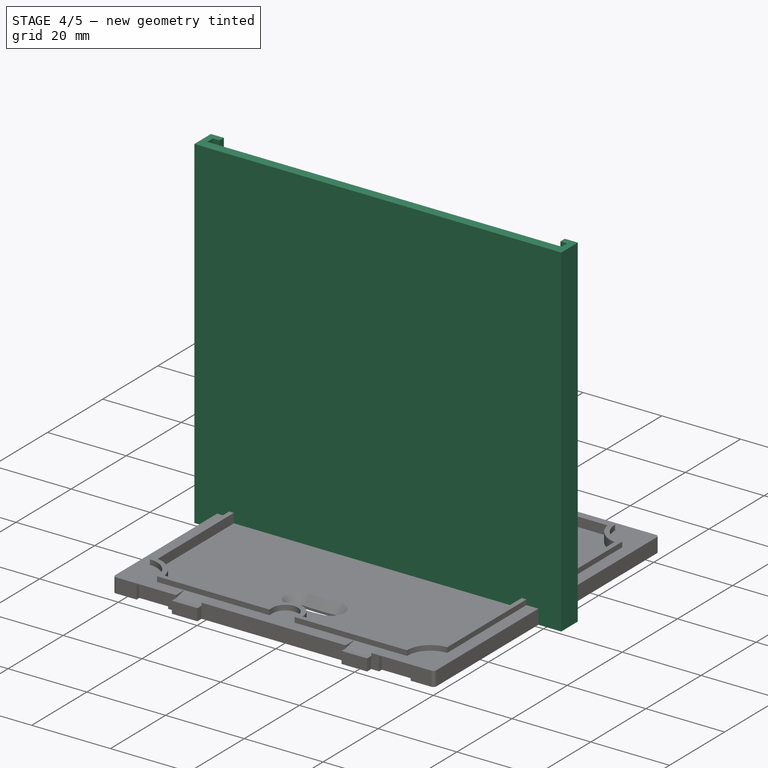
[diagram: stage 4 of 5 — iso view after this stage's code; geometry added in this stage tinted green]
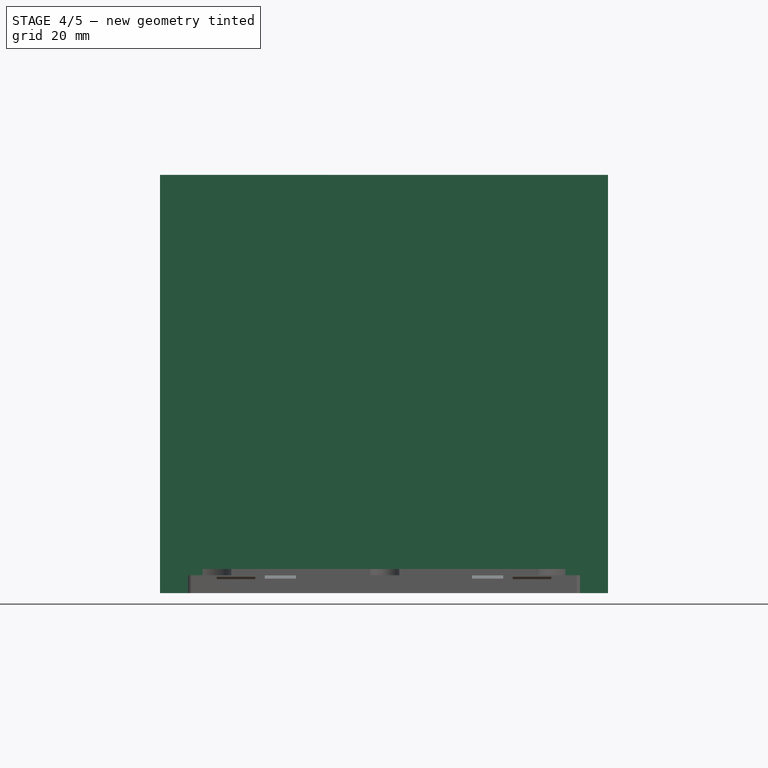
[diagram: stage 4 of 5 — front view after this stage's code; geometry added in this stage tinted green]
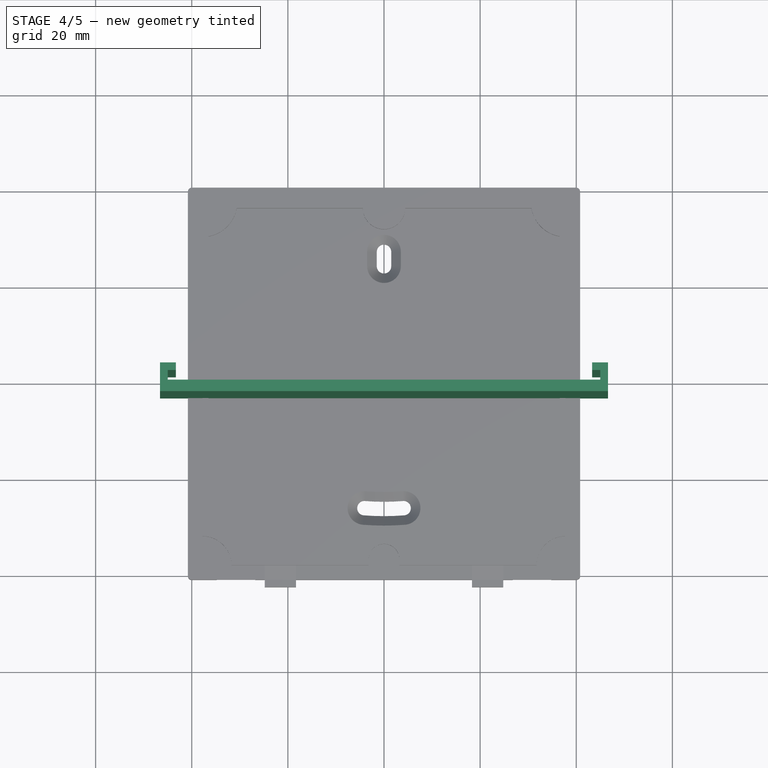
[diagram: stage 4 of 5 — top view after this stage's code; geometry added in this stage tinted green]
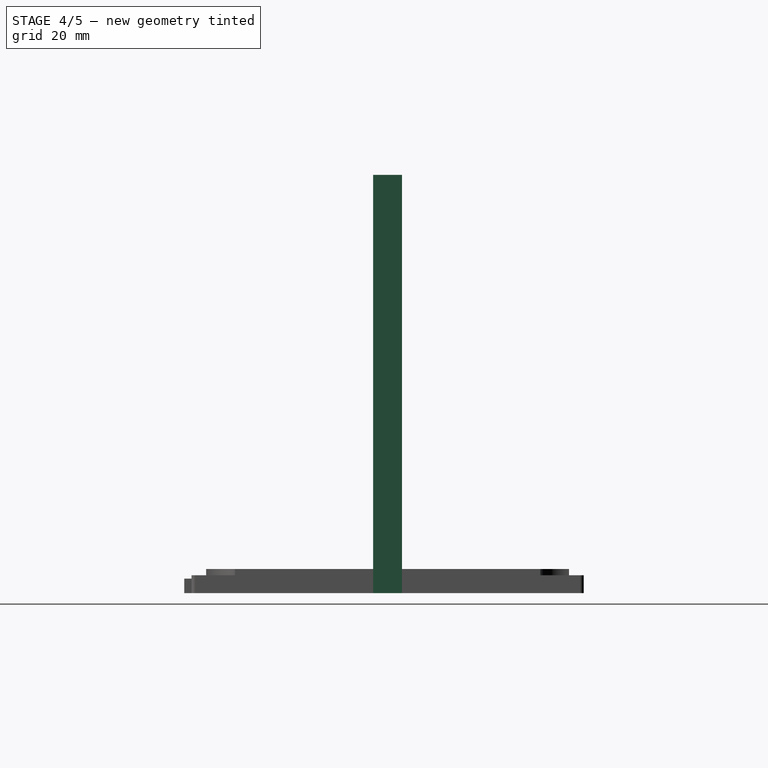
[diagram: stage 4 of 5 — right view after this stage's code; geometry added in this stage tinted green]
FEATURE [PartDesign::Body] Body  label="Base"
  AllowCompound = false
  Group = -> [Sketch,Sketch001,Pad,Fillet,Sketch002,Pocket,Chamfer,Sketch003,Pocket001,Chamfer001,Sketch004,Pad001,Sketch005,Pocket002]
  Origin = -> Origin
  Tip = -> Pocket002
FEATURE [PartDesign::FeatureBase] Clone
  BaseFeature = -> Body
  Suppressed = false
FEATURE [PartDesign::ShapeBinder] ShapeBinder
  Support = -> [Sketch]
  TraceSupport = false
FEATURE [Sketcher::SketchObject] Sketch006
  ArcFitTolerance = 1e-06
  AttachmentSupport = -> [XY_Plane001]
  ExternalGeometry = -> [ShapeBinder]
  FullyConstrained = true
  MakeInternals = false
  MapMode = 5
  sketch-geometry (33):
    g0: LineSegment StartX=-44.7 StartY=40.8 StartZ=0 EndX=-44.7 EndY=-40.8 EndZ=0
    g1: LineSegment StartX=44.7 StartY=-40.8 StartZ=0 EndX=44.7 EndY=40.8 EndZ=0
    g2: LineSegment StartX=-40.8 StartY=40.8 StartZ=0 EndX=-44.7 EndY=40.8 EndZ=0
    g3: LineSegment StartX=44.7 StartY=40.8 StartZ=0 EndX=40.8 EndY=40.8 EndZ=0
    g4: LineSegment StartX=40.8 StartY=-40.8 StartZ=0 EndX=44.7 EndY=-40.8 EndZ=0
    g5: LineSegment StartX=-44.7 StartY=-40.8 StartZ=0 EndX=-40.8 EndY=-40.8 EndZ=0
    g6: LineSegment StartX=-40.8 StartY=-40.8 StartZ=0 EndX=-34.8 EndY=-40.8 EndZ=0
    g7: LineSegment StartX=34.8 StartY=-40.8 StartZ=0 EndX=40.8 EndY=-40.8 EndZ=0
    g8: LineSegment StartX=40.8 StartY=40.8 StartZ=0 EndX=34.8 EndY=40.8 EndZ=0
    g9: LineSegment StartX=-34.8 StartY=40.8 StartZ=0 EndX=-40.8 EndY=40.8 EndZ=0
    g10: LineSegment StartX=26.8 StartY=40.8 StartZ=0 EndX=-26.8 EndY=40.8 EndZ=0
    g11: LineSegment StartX=-34.8 StartY=-40.8 StartZ=0 EndX=-34.8 EndY=-39.8 EndZ=0
    g12: LineSegment StartX=-34.8 StartY=-39.8 StartZ=0 EndX=-26.8 EndY=-39.8 EndZ=0
    g13: LineSegment StartX=-26.8 StartY=-39.8 StartZ=0 EndX=-26.8 EndY=-40.8 EndZ=0
    g14: LineSegment StartX=26.8 StartY=-40.8 StartZ=0 EndX=26.8 EndY=-39.8 EndZ=0
    g15: LineSegment StartX=26.8 StartY=-39.8 StartZ=0 EndX=34.8 EndY=-39.8 EndZ=0
    g16: LineSegment StartX=34.8 StartY=-39.8 StartZ=0 EndX=34.8 EndY=-40.8 EndZ=0
    g17: LineSegment StartX=26.8 StartY=40.8 StartZ=0 EndX=26.8 EndY=39.8 EndZ=0
    g18: LineSegment StartX=26.8 StartY=39.8 StartZ=0 EndX=34.8 EndY=39.8 EndZ=0
    g19: LineSegment StartX=34.8 StartY=39.8 StartZ=0 EndX=34.8 EndY=40.8 EndZ=0
    g20: LineSegment StartX=-34.8 StartY=40.8 StartZ=0 EndX=-34.8 EndY=39.8 EndZ=0
    g21: LineSegment StartX=-34.8 StartY=39.8 StartZ=0 EndX=-26.8 EndY=39.8 EndZ=0
    g22: LineSegment StartX=-26.8 StartY=39.8 StartZ=0 EndX=-26.8 EndY=40.8 EndZ=0
    g23: LineSegment StartX=-26.8 StartY=-40.8 StartZ=0 EndX=-24.8 EndY=-40.8 EndZ=0
    g24: LineSegment StartX=-24.8 StartY=-40.8 StartZ=0 EndX=-24.8 EndY=-42.3 EndZ=0
    g25: LineSegment StartX=-24.8 StartY=-42.3 StartZ=0 EndX=-18.3 EndY=-42.3 EndZ=0
    g26: LineSegment StartX=-18.3 StartY=-42.3 StartZ=0 EndX=-18.3 EndY=-40.8 EndZ=0
    g27: LineSegment StartX=-18.3 StartY=-40.8 StartZ=0 EndX=18.3 EndY=-40.8 EndZ=0
    g28: LineSegment StartX=18.3 StartY=-40.8 StartZ=0 EndX=18.3 EndY=-42.3 EndZ=0
    g29: LineSegment StartX=18.3 StartY=-42.3 StartZ=0 EndX=24.8 EndY=-42.3 EndZ=0
    g30: LineSegment StartX=24.8 StartY=-42.3 StartZ=0 EndX=24.8 EndY=-40.8 EndZ=0
    g31: LineSegment StartX=24.8 StartY=-40.8 StartZ=0 EndX=26.8 EndY=-40.8 EndZ=0
    g32: LineSegment [constr] StartX=-42.7 StartY=40.8 StartZ=0 EndX=-42.7 EndY=-40.8 EndZ=0
  constraints (74):
    c: Coincident(g0,g5)
    c: Coincident(g4,g1)
    c: Coincident(g1,g3)
    c: Coincident(g2,g0)
    c: Vertical(g0)
    c: Vertical(g1)
    c: Coincident(g9,g2)
    c: Coincident(g3,g8)
    c: Coincident(g7,g4)
    c: Coincident(g5,g6)
    c: Coincident(g5,g-3)
    c: Coincident(g4,g-4)
    c: Coincident(g3,g-4)
    c: Coincident(g2,g-3)
    c: Equal(g2,g3)
    c: Horizontal(g2)
    c: Horizontal(g3)
    c: Horizontal(g4)
    c: Horizontal(g5)
    c: Coincident(g6,g-12)
    c: Coincident(g6,g11)
    c: Coincident(g11,g-12)
    c: Coincident(g11,g12)
    c: Coincident(g12,g-11)
    c: Coincident(g12,g13)
    c: Coincident(g7,g-10)
    c: Coincident(g14,g-9)
    c: Coincident(g14,g15)
    c: Coincident(g15,g-10)
    c: Coincident(g15,g16)
    c: Coincident(g16,g7)
    c: Coincident(g8,g-8)
    c: Coincident(g10,g-7)
    c: Coincident(g10,g17)
    c: Coincident(g17,g-7)
    c: Coincident(g17,g18)
    c: Coincident(g18,g-8)
    c: Coincident(g18,g19)
    c: Coincident(g19,g8)
    c: Coincident(g9,g-5)
    c: Coincident(g10,g-6)
    c: Coincident(g9,g20)
    c: Coincident(g20,g-5)
    c: Coincident(g20,g21)
    c: Coincident(g21,g-6)
    c: Coincident(g21,g22)
    c: Coincident(g22,g10)
    c: Coincident(g13,g-11)
    c: Coincident(g14,g-9)
    c: Coincident(g13,g23)
    c: Coincident(g23,g-13)
    c: Coincident(g23,g24)
    c: Coincident(g24,g-13)
    c: Coincident(g24,g25)
    c: Coincident(g25,g-14)
    c: Coincident(g25,g26)
    c: Coincident(g26,g-14)
    c: Coincident(g26,g27)
    c: Coincident(g27,g-15)
    c: Coincident(g27,g28)
    c: Coincident(g28,g-15)
    c: Coincident(g28,g29)
    c: Coincident(g29,g-16)
    c: Coincident(g29,g30)
    c: Coincident(g30,g-16)
    c: Coincident(g30,g31)
    c: Coincident(g31,g14)
    c: DistanceX(g0,g1) = 89.4  'Width'
    c: PointOnObject(g32,g2)
    c: PointOnObject(g32,g5)
    c: Vertical(g32)
    c: DistanceX(g32,g2) = 1.9
    c: DistanceX(g0,g32) = 2  'ExtraWidth'
    c: DistanceY(g0,g0) = 81.6  'Height'
FEATURE [PartDesign::Pad] Pad002
  BaseFeature = -> Clone
  Direction = (0,0,1)
  Length = 1.6
  Length2 = 10
  Profile = -> Sketch006
  ReferenceAxis = -> Sketch006 [N_Axis]
  Refine = true
  Reversed = true
  Suppressed = false
  Type = 0
  expr: Length = 1.6
FEATURE [PartDesign::Body] Body001  label="BackWithFlaps"
  AllowCompound = false
  Group = -> [Clone,ShapeBinder,Sketch006,Pad002,Fillet001]
  Origin = -> Origin001
  Tip = -> Fillet001
FEATURE [Sketcher::SketchObject] Sketch007
  ArcFitTolerance = 1e-06
  AttachmentSupport = -> [XY_Plane002]
  FullyConstrained = true
  MakeInternals = false
  MapMode = 5
  expr: Constraints[36] = <<Pad002>>.Length + 0.4 mm
  expr: Constraints[37] = <<Sketch006>>.Constraints.ExtraWidth - 0.3 mm
  expr: Constraints[40] = <<Sketch006>>.Constraints.Width + 0.6 mm
  sketch-geometry (15):
    g0: LineSegment StartX=-43.3 StartY=3 StartZ=0 EndX=-46.6 EndY=3 EndZ=0
    g1: LineSegment StartX=-46.6 StartY=3 StartZ=0 EndX=-46.6 EndY=-3 EndZ=0
    g2: LineSegment StartX=-46.6 StartY=-3 StartZ=0 EndX=46.6 EndY=-3 EndZ=0
    g3: LineSegment StartX=46.6 StartY=-3 StartZ=0 EndX=46.6 EndY=3 EndZ=0
    g4: LineSegment StartX=46.6 StartY=3 StartZ=0 EndX=43.3 EndY=3 EndZ=0
    g5: LineSegment StartX=43.3 StartY=3 StartZ=0 EndX=43.3 EndY=1.4 EndZ=0
    g6: LineSegment StartX=43.3 StartY=1.4 StartZ=0 EndX=45 EndY=1.4 EndZ=0
    g7: LineSegment StartX=45 StartY=1.4 StartZ=0 EndX=45 EndY=-0.6 EndZ=0
    g8: LineSegment StartX=45 StartY=-0.6 StartZ=0 EndX=-45 EndY=-0.6 EndZ=0
    g9: LineSegment StartX=-45 StartY=-0.6 StartZ=0 EndX=-45 EndY=1.4 EndZ=0
    g10: LineSegment StartX=-45 StartY=1.4 StartZ=0 EndX=-43.3 EndY=1.4 EndZ=0
    g11: LineSegment StartX=-43.3 StartY=1.4 StartZ=0 EndX=-43.3 EndY=3 EndZ=0
    g12: LineSegment [constr] StartX=-45 StartY=1.4 StartZ=0 EndX=-46.6 EndY=1.4 EndZ=0
    g13: LineSegment [constr] StartX=-45 StartY=-0.6 StartZ=0 EndX=-45 EndY=-3 EndZ=0
    g14: LineSegment [constr] StartX=45 StartY=-0.6 StartZ=0 EndX=46.6 EndY=-0.6 EndZ=0
  constraints (44):
    c: Horizontal(g0)
    c: Coincident(g0,g1)
    c: Vertical(g1)
    c: Coincident(g1,g2)
    c: Horizontal(g2)
    c: Coincident(g2,g3)
    c: Vertical(g3)
    c: Coincident(g3,g4)
    c: Horizontal(g4)
    c: Coincident(g4,g5)
    c: Vertical(g5)
    c: Coincident(g5,g6)
    c: Horizontal(g6)
    c: Coincident(g6,g7)
    c: Coincident(g7,g8)
    c: Horizontal(g8)
    c: Coincident(g8,g9)
    c: Vertical(g9)
    c: Coincident(g9,g10)
    c: Horizontal(g10)
    c: Coincident(g10,g11)
    c: Vertical(g11)
    c: Coincident(g11,g0)
    c: PointOnObject(g4,g0)
    c: PointOnObject(g5,g10)
    c: Coincident(g12,g9)
    c: PointOnObject(g12,g1)
    c: Horizontal(g12)
    c: Coincident(g13,g8)
    c: PointOnObject(g13,g2)
    c: Vertical(g13)
    c: Coincident(g14,g7)
    c: PointOnObject(g14,g3)
    c: Horizontal(g14)
    c: Vertical(g7)
    c: Equal(g11,g12)
    c: DistanceY(g8,g12) = 2
    c: DistanceX(g9,g0) = 1.7
    c: DistanceY(g12,g0) = 1.6
    c: Equal(g4,g0)
    c: DistanceX(g13,g7) = 90
    c: Symmetric(g1,g3,g-1)
    c: Equal(g12,g14)
    c: DistanceY(g1,g8) = 2.4
FEATURE [PartDesign::Pad] Pad003
  Direction = (0,0,1)
  Length = 87
  Length2 = 10
  Profile = -> Sketch007
  ReferenceAxis = -> Sketch007 [N_Axis]
  Refine = true
  Suppressed = false
  Type = 0
  expr: Length = <<Sketch006>>.Constraints.Height + 1.6 mm + 2 * 1.9 mm
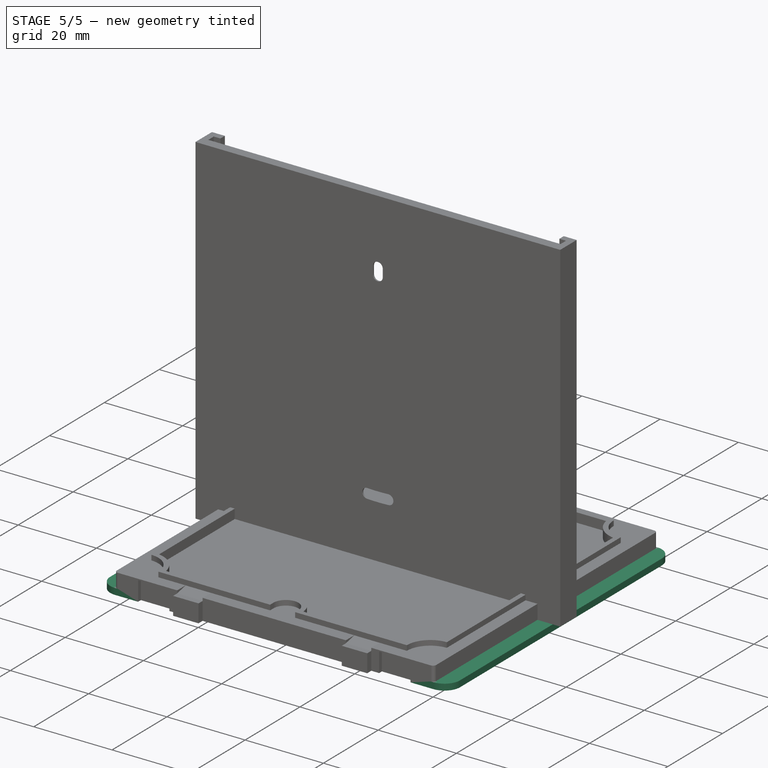
[diagram: stage 5 of 5 — iso view after this stage's code; geometry added in this stage tinted green]
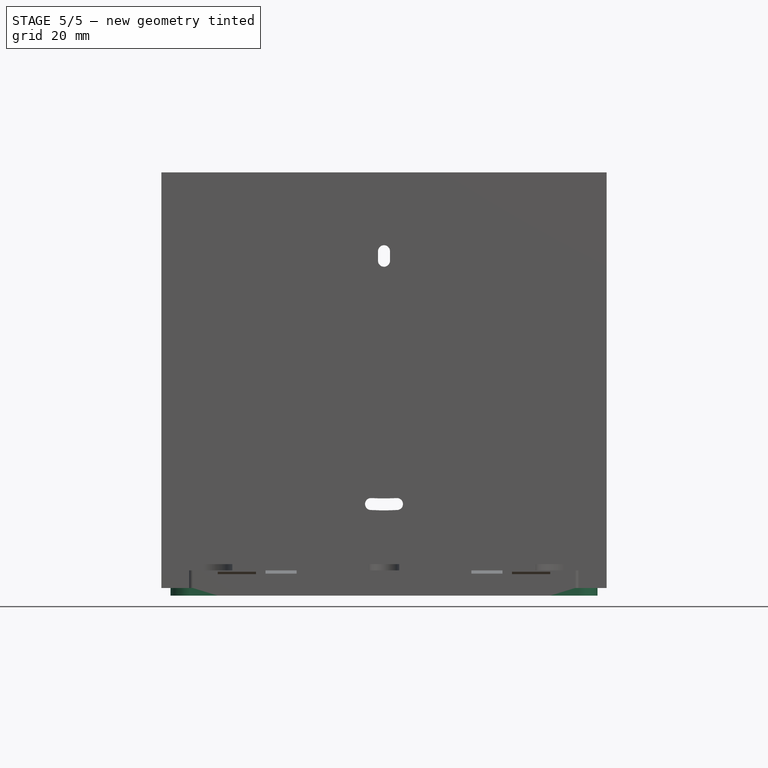
[diagram: stage 5 of 5 — front view after this stage's code; geometry added in this stage tinted green]
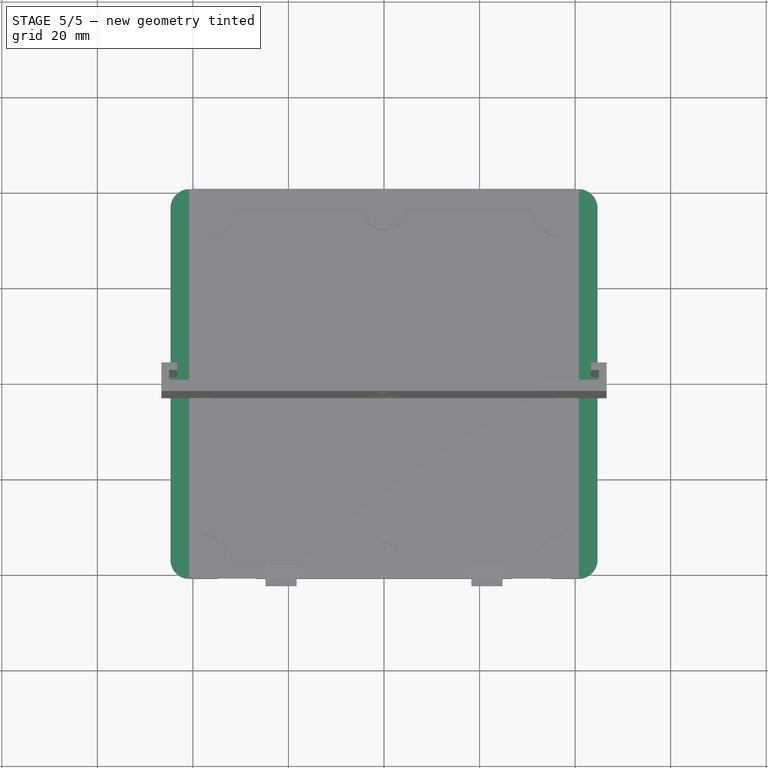
[diagram: stage 5 of 5 — top view after this stage's code; geometry added in this stage tinted green]
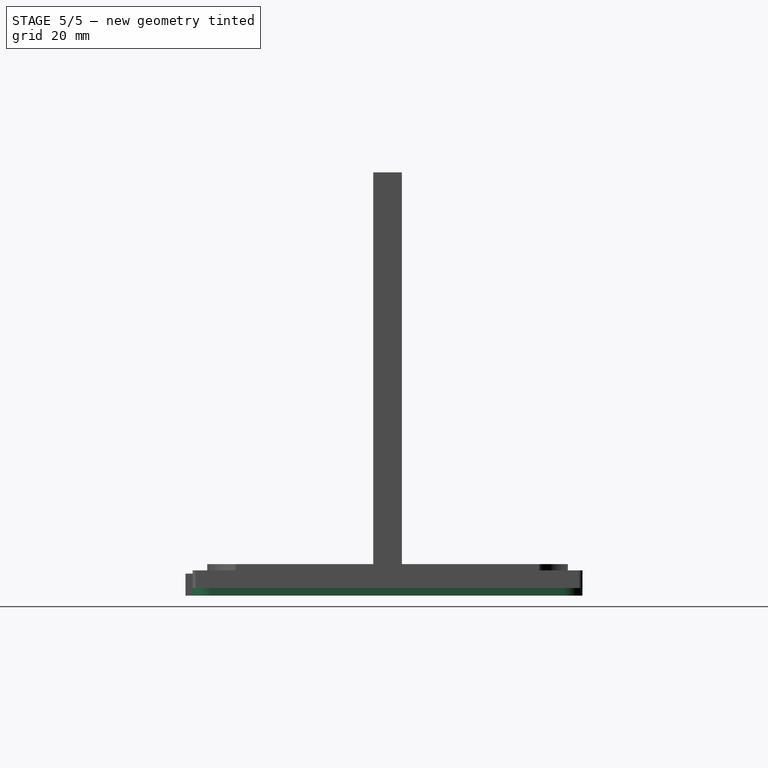
[diagram: stage 5 of 5 — right view after this stage's code; geometry added in this stage tinted green]
FEATURE [PartDesign::Fillet] Fillet001
  Base = -> Pad002 [Edge45,Edge57,Edge10,Edge16]
  BaseFeature = -> Pad002
  Radius = 4
  Refine = true
  SupportTransform = false
  Suppressed = false
  UseAllEdges = false
FEATURE [Sketcher::SketchObject] Sketch008
  ArcFitTolerance = 1e-06
  AttachmentSupport = -> [XY_Plane002]
  ExternalGeometry = -> [Sketch007]
  FullyConstrained = true
  MakeInternals = false
  MapMode = 5
  sketch-geometry (4):
    g0: LineSegment StartX=-46.6 StartY=3 StartZ=0 EndX=-46.6 EndY=-3 EndZ=0
    g1: LineSegment StartX=-46.6 StartY=-3 StartZ=0 EndX=46.6 EndY=-3 EndZ=0
    g2: LineSegment StartX=46.6 StartY=-3 StartZ=0 EndX=46.6 EndY=3 EndZ=0
    g3: LineSegment StartX=46.6 StartY=3 StartZ=0 EndX=-46.6 EndY=3 EndZ=0
  constraints (8):
    c: Coincident(g0,g1)
    c: Coincident(g1,g2)
    c: Coincident(g2,g3)
    c: Coincident(g3,g0)
    c: Coincident(g0,g-3)
    c: Coincident(g1,g-4)
    c: Coincident(g2,g-4)
    c: Coincident(g0,g-3)
FEATURE [PartDesign::Pad] Pad004
  BaseFeature = -> Pad003
  Direction = (0,0,1)
  Length = 1.6
  Length2 = 10
  Profile = -> Sketch008
  ReferenceAxis = -> Sketch008 [N_Axis]
  Refine = true
  Suppressed = false
  Type = 0
FEATURE [PartDesign::Plane] DatumPlane
  AttachmentSupport = -> [Pad004]
  Length = 106.853
  MapMode = 5
  Placement = pos=(0,-0.6,0) rot=(0,0.707107,0.707107;3.14159rad)
  ResizeMode = 0
  Width = 63.6528
FEATURE [Sketcher::SketchObject] Sketch009
  ArcFitTolerance = 1e-06
  AttachmentSupport = -> [DatumPlane]
  ExternalGeometry = -> [Sketch007]
  FullyConstrained = true
  MakeInternals = false
  MapMode = 5
  Placement = pos=(0,-0.6,0) rot=(0,0.707107,0.707107;3.14159rad)
  expr: Constraints[12] = <<Pad003>>.Length / 2
  sketch-geometry (14):
    g0: ArcOfCircle CenterX=0 CenterY=70.5 CenterZ=0 NormalX=0 NormalY=0 NormalZ=1 AngleXU=0 Radius=1.25 StartAngle=2.2e-15 EndAngle=3.14159
    g1: ArcOfCircle CenterX=0 CenterY=68.5 CenterZ=0 NormalX=0 NormalY=0 NormalZ=1 AngleXU=0 Radius=1.25 StartAngle=3.14159 EndAngle=6.28319
    g2: LineSegment StartX=1.25 StartY=70.5 StartZ=0 EndX=1.25 EndY=68.5 EndZ=0
    g3: LineSegment StartX=-1.25 StartY=70.5 StartZ=0 EndX=-1.25 EndY=68.5 EndZ=0
    g4: GeomPoint X=0 Y=69.5 Z=0
    g5: LineSegment [constr] StartX=0 StartY=69.5 StartZ=0 EndX=0 EndY=43.5 EndZ=0
    g6: LineSegment [constr] StartX=0 StartY=43.5 StartZ=0 EndX=1.46e-14 EndY=17.5 EndZ=0
    g7: ArcOfCircle [constr] CenterX=0 CenterY=69.5 CenterZ=0 NormalX=0 NormalY=0 NormalZ=1 AngleXU=0 Radius=52 StartAngle=4.66003 EndAngle=4.76475
    g8: LineSegment [constr] StartX=0 StartY=69.5 StartZ=0 EndX=-2.72147 EndY=17.5713 EndZ=0
    g9: LineSegment [constr] StartX=2.72147 StartY=17.5713 StartZ=0 EndX=0 EndY=69.5 EndZ=0
    g10: ArcOfCircle CenterX=-2.72147 CenterY=17.5713 CenterZ=0 NormalX=0 NormalY=0 NormalZ=1 AngleXU=0 Radius=1.25 StartAngle=1.51844 EndAngle=4.66003
    g11: ArcOfCircle CenterX=2.72147 CenterY=17.5713 CenterZ=0 NormalX=0 NormalY=0 NormalZ=1 AngleXU=0 Radius=1.25 StartAngle=4.76475 EndAngle=7.90634
    g12: ArcOfCircle CenterX=0 CenterY=69.5 CenterZ=0 NormalX=0 NormalY=0 NormalZ=1 AngleXU=0 Radius=50.75 StartAngle=4.66003 EndAngle=4.76475
    g13: ArcOfCircle CenterX=0 CenterY=69.5 CenterZ=0 NormalX=0 NormalY=0 NormalZ=1 AngleXU=0 Radius=53.25 StartAngle=4.66003 EndAngle=4.76475
  constraints (34):
    c: Tangent(g0,g2) = 1.5708
    c: Tangent(g0,g3) = -1.5708
    c: Tangent(g1,g2) = 1.5708
    c: Tangent(g1,g3) = -1.5708
    c: Equal(g0,g1)
    c: Diameter(g0) = 2.5
    c: DistanceY(g3,g3) = 2
    c: Symmetric(g0,g1,g4)
    c: Coincident(g5,g4)
    c: DistanceY(g5,g5) = 26
    c: PointOnObject(g0,g5)
    c: DistanceY(g-3) = 0
    c: DistanceY(g-3,g5) = 43.5
    c: Symmetric(g-3,g-3,g5)
    c: Coincident(g6,g5)
    c: Equal(g5,g6)
    c: Coincident(g7,g4)
    c: PointOnObject(g6,g7)
    c: Coincident(g8,g4)
    c: Coincident(g8,g7)
    c: Coincident(g9,g7)
    c: Coincident(g9,g4)
    c: Symmetric(g7,g7,g6)
    c: Angle(g8,g9) = 0.10472
    c: Coincident(g10,g7)
    c: Coincident(g11,g7)
    c: Equal(g10,g11)
    c: Equal(g1,g11)
    c: Coincident(g12,g4)
    c: Coincident(g13,g4)
    c: Tangent(g10,g13) = -1.5708
    c: Tangent(g10,g12) = 1.5708
    c: Coincident(g11,g12)
    c: Coincident(g11,g13)
FEATURE [PartDesign::Pocket] Pocket003
  BaseFeature = -> Pad004
  Direction = (0,-1,2e-16)
  Length = 5
  Length2 = 5
  Profile = -> Sketch009
  ReferenceAxis = -> Sketch009 [N_Axis]
  Refine = true
  Suppressed = false
  Type = 1
FEATURE [PartDesign::Chamfer] Chamfer002
  Angle = 45
  Base = -> Pocket003 [Edge47,Edge43]
  BaseFeature = -> Pocket003
  ChamferType = 0
  FlipDirection = false
  Refine = true
  Size = 2
  Size2 = 1
  SupportTransform = false
  Suppressed = false
  UseAllEdges = false
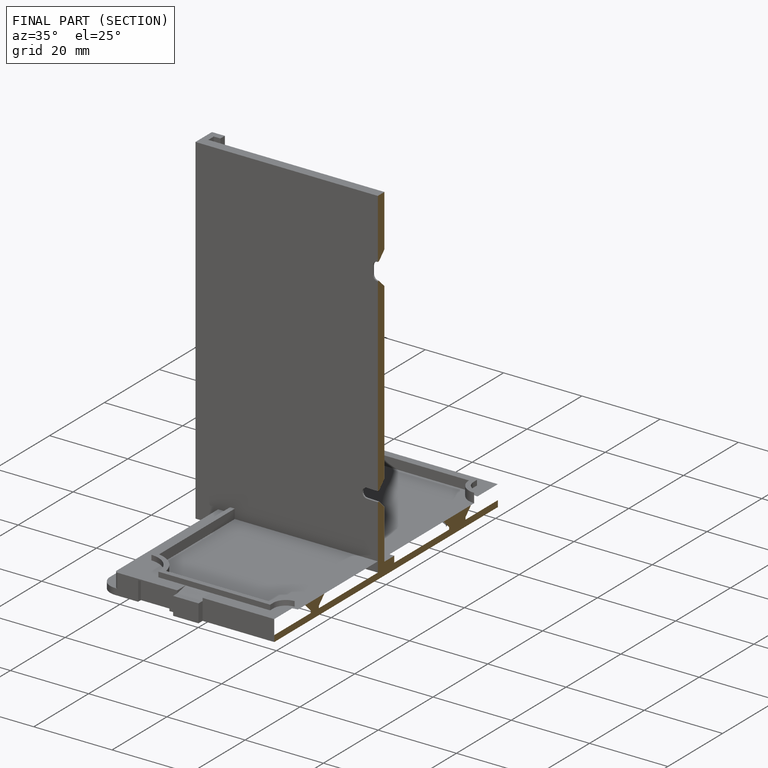
[diagram: finished part — half-section view (interior)]
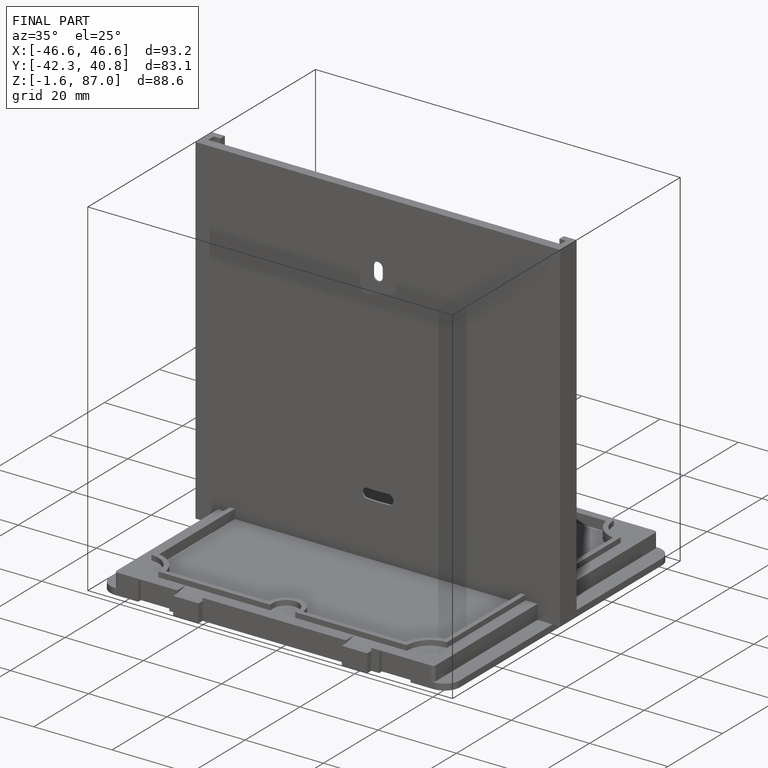
[diagram: finished part — iso view with bounding-box wireframe]
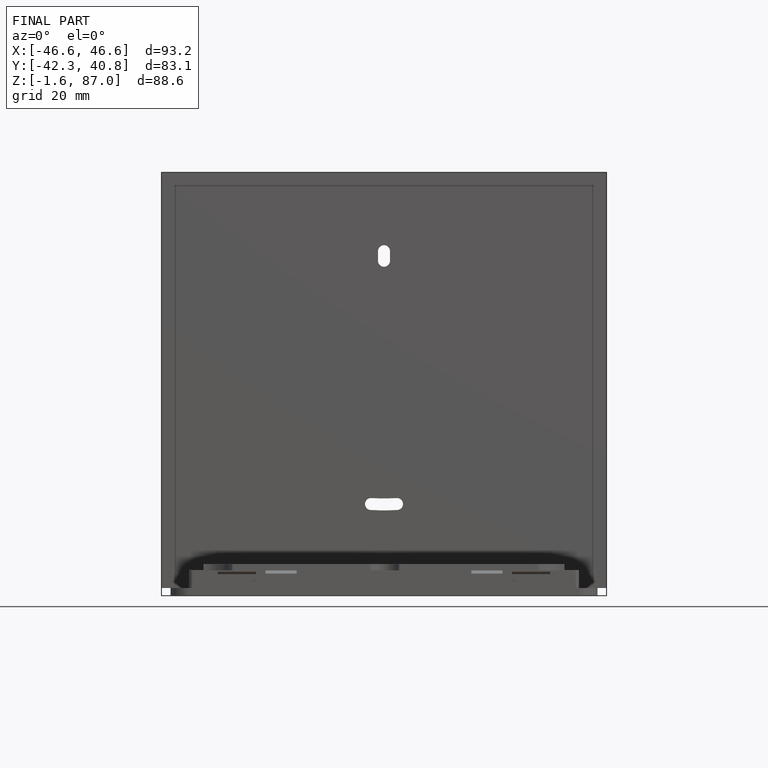
[diagram: finished part — front view with bounding-box wireframe]
